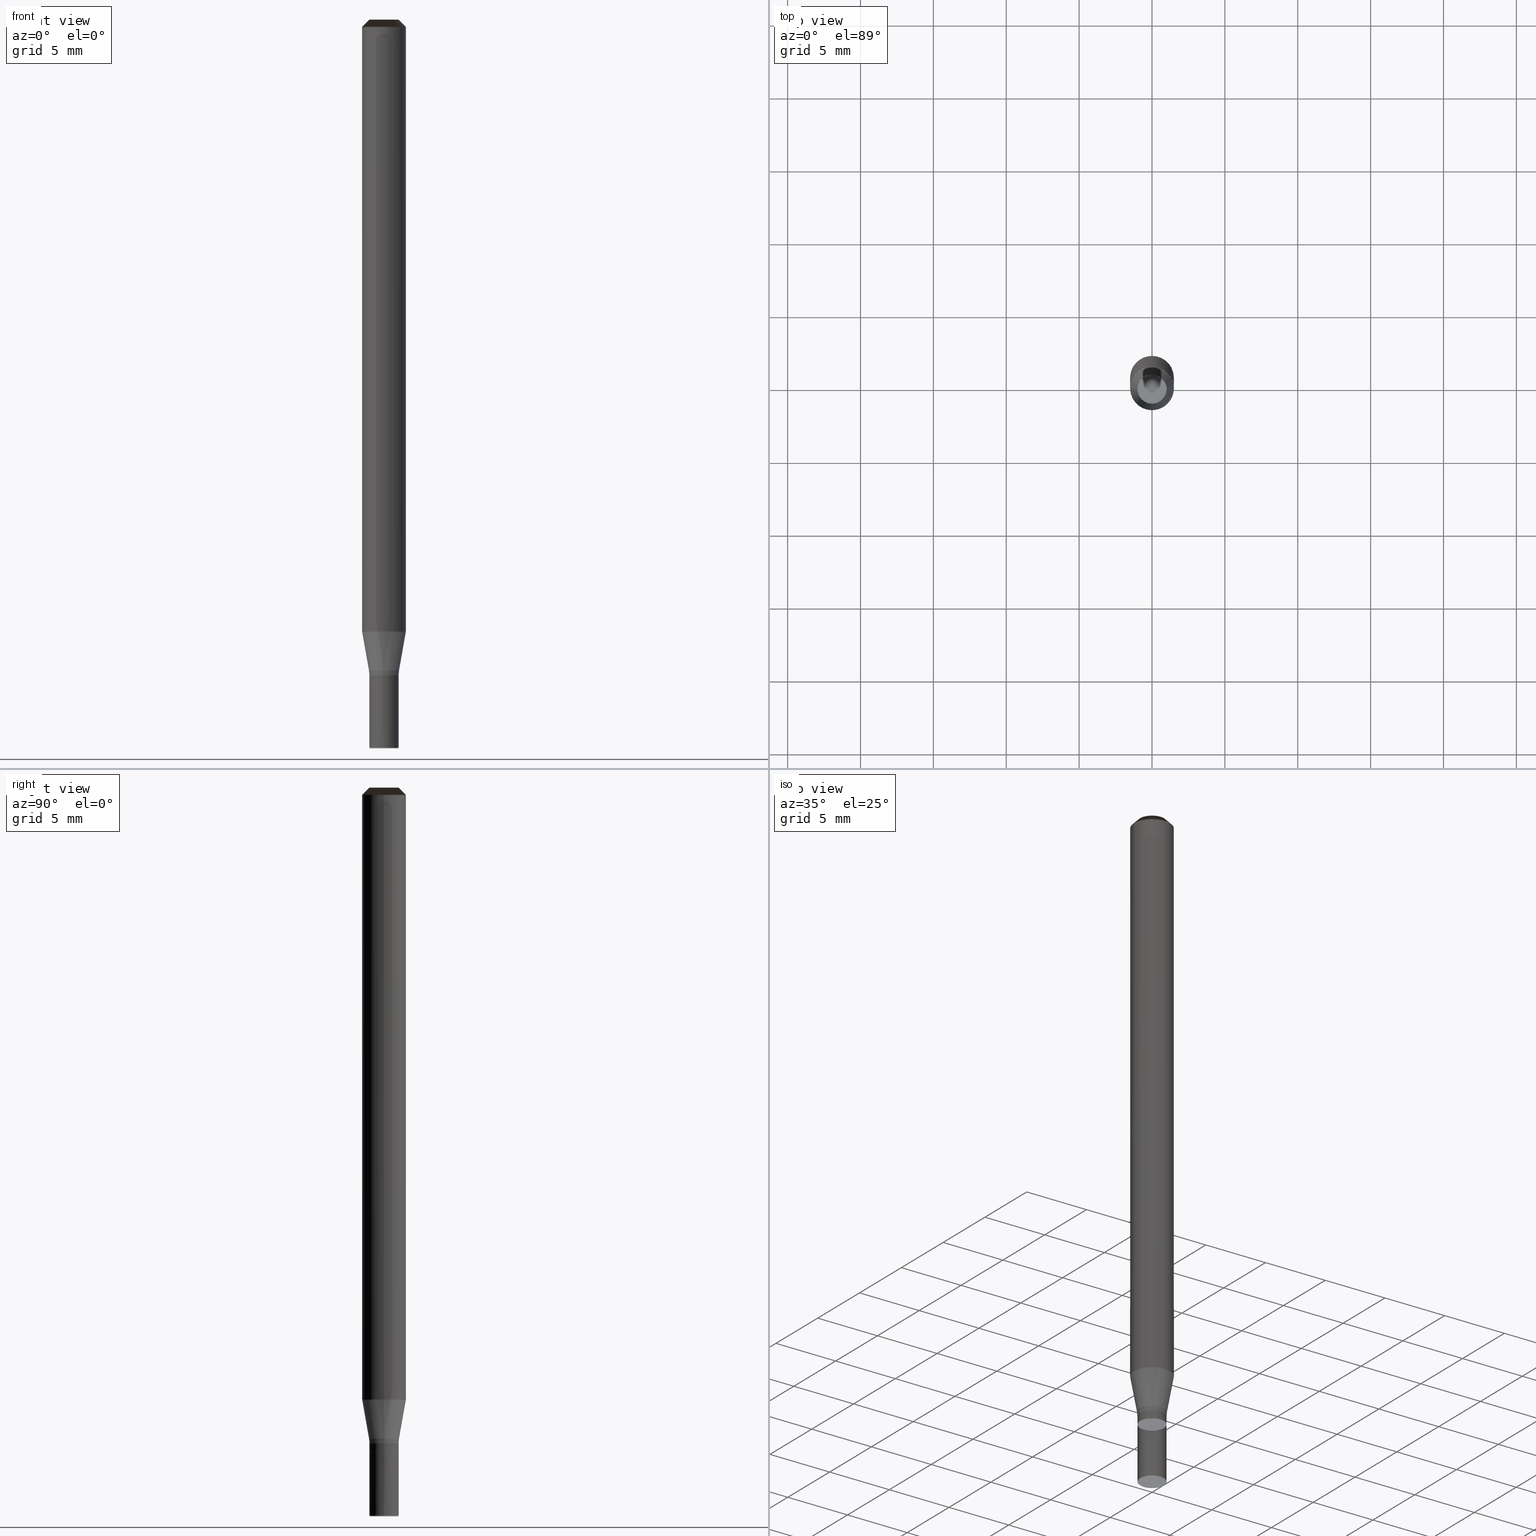
[diagram: canonical four-view strip — front | top / right | iso, engineering-drawing reading convention]
A machine part, canonical four-view strip (front | top / right | iso — engineering-drawing reading convention). The complete STEP part file that produces these views, byte-faithful:
ISO-10303-21;
HEADER;
/* Generated by ISBE GmbH (www.isbe.de) */
/* OPTION: using custom schema-name function */

FILE_DESCRIPTION(
/* description */ (''),
/* implementation_level */ '2;1');

FILE_NAME(
/*name*/ '2540500020',
/*time_stamp*/'2020-3-26T14:10:33',
/*author*/ ('ISBE GmbH'),
/*organization*/ ('ISBE GmbH'),
/*preprocessor_version*/ 'STEP IO v1.0',
/*originating_system*/ '',
/*authorisation*/ '');

FILE_SCHEMA (('AUTOMOTIVE_DESIGN'));
ENDSEC;

DATA;
#10=SHAPE_DEFINITION_REPRESENTATION(#11,#53);
#11=PRODUCT_DEFINITION_SHAPE('Document','',#13);
#12=PRODUCT_DEFINITION_CONTEXT('3D Mechanical Parts',#17,'design');
#13=PRODUCT_DEFINITION('A','First version',#14,#12);
#14=PRODUCT_DEFINITION_FORMATION_WITH_SPECIFIED_SOURCE('A','First version',#19,.MADE.);
#15=PRODUCT_RELATED_PRODUCT_CATEGORY('tool','tool',(#19));
#16=APPLICATION_PROTOCOL_DEFINITION('Draft International Standard', 'automotive_design',1999,#17);
#17=APPLICATION_CONTEXT('data for automotive mechanical design processes');
#18=PRODUCT_CONTEXT('3D Mechanical Parts',#17,'mechanical');
#19=PRODUCT('Document','Document','ISBE converted to STEP',(#18));
#20=(
LENGTH_UNIT()
NAMED_UNIT(*)
SI_UNIT(.MILLI.,.METRE.)
);
#21=(
NAMED_UNIT(*)
PLANE_ANGLE_UNIT()
SI_UNIT($,.RADIAN.)
);
#22=DIMENSIONAL_EXPONENTS(0.,0.,0.,0.,0.,0.,0.);
#23=PLANE_ANGLE_MEASURE_WITH_UNIT(PLANE_ANGLE_MEASURE(0.01745329252),#21);
#24=(
CONVERSION_BASED_UNIT('DEGREES',#23)
NAMED_UNIT(#22)
PLANE_ANGLE_UNIT()
);
#25=(
NAMED_UNIT(*)
SI_UNIT($,.STERADIAN.)
SOLID_ANGLE_UNIT()
);
#26=UNCERTAINTY_MEASURE_WITH_UNIT(LENGTH_MEASURE(0.001),#20, 'DISTANCE_ACCURACY_VALUE', 'Maximum model space distance between geometric entities at asserted connectivities');
#27=(
GEOMETRIC_REPRESENTATION_CONTEXT(3)
GLOBAL_UNCERTAINTY_ASSIGNED_CONTEXT((#26))
GLOBAL_UNIT_ASSIGNED_CONTEXT((#25,#24,#20))
REPRESENTATION_CONTEXT('ID1','3D')
);
#28=CARTESIAN_POINT('',(0.0,0.0,0.0));
#29=DIRECTION('',(1.0,0.0,0.0));
#30=DIRECTION('',(0.0,0.0,1.0));
#31=AXIS2_PLACEMENT_3D('',#28,#30,#29);
#32=CARTESIAN_POINT('',(0.0,0.0,0.0));
#33=DIRECTION('',(1.0,0.0,0.0));
#34=DIRECTION('',(0.0,0.0,1.0));
#35=AXIS2_PLACEMENT_3D('',#32,#34,#33);
#36=CARTESIAN_POINT('',(0.0,0.0,0.0));
#37=DIRECTION('',(1.0,0.0,0.0));
#38=DIRECTION('',(0.0,0.0,1.0));
#39=AXIS2_PLACEMENT_3D('',#36,#38,#37);
#40=CARTESIAN_POINT('',(0.0,0.0,0.0));
#41=DIRECTION('',(0.0,0.0,1.0));
#42=DIRECTION('',(1.0,0.0,0.0));
#43=AXIS2_PLACEMENT_3D('MCS',#40,#42,#41);
#44=CARTESIAN_POINT('',(0.0,0.0,41.989381763139));
#45=DIRECTION('',(0.0,0.0,1.0));
#46=DIRECTION('',(1.0,0.0,0.0));
#47=AXIS2_PLACEMENT_3D('PCS',#44,#46,#45);
#48=CARTESIAN_POINT('',(0.0,0.0,-8.010618236861));
#49=DIRECTION('',(0.0,0.0,1.0));
#50=DIRECTION('',(1.0,0.0,0.0));
#51=AXIS2_PLACEMENT_3D('CIP',#48,#50,#49);
#53=SHAPE_REPRESENTATION('Document',(#31,#35,#39,#43,#47,#51),#27);
#54=DIRECTION('',(1.0,0.0,0.0));
#55=DIRECTION('',(0.0,0.0,1.0));
#56=CARTESIAN_POINT('',(-0.009998760884,0.000157419108,-8.010618236861));
#57=CARTESIAN_POINT('',(-0.010283211718,-0.017909992856,-8.010618236861));
#58=CARTESIAN_POINT('',(-0.010629626507,-0.039913158102,-8.010618236861));
#59=CARTESIAN_POINT('',(-0.01096128709,-0.060979183098,-8.010618236861));
#60=CARTESIAN_POINT('',(-0.011289616439,-0.081833618752,-8.010618236861));
#61=CARTESIAN_POINT('',(-0.011616643925,-0.102605364223,-8.010618236861));
#62=CARTESIAN_POINT('',(-0.011943026584,-0.123336152283,-8.010618236861));
#63=CARTESIAN_POINT('',(-0.012269042539,-0.144043648505,-8.010618236861));
#64=CARTESIAN_POINT('',(-0.012594829947,-0.164736628131,-8.010618236861));
#65=CARTESIAN_POINT('',(-0.012920465262,-0.185419947286,-8.010618236861));
#66=CARTESIAN_POINT('',(-0.01324599424,-0.20609651227,-8.010618236861));
#67=CARTESIAN_POINT('',(-0.013571445948,-0.226768169332,-8.010618236861));
#68=CARTESIAN_POINT('',(-0.013896839741,-0.247436147766,-8.010618236861));
#69=CARTESIAN_POINT('',(-0.014222189004,-0.268101297833,-8.010618236861));
#70=CARTESIAN_POINT('',(-0.014547503292,-0.28876422643,-8.010618236861));
#71=CARTESIAN_POINT('',(-0.01487278961,-0.30942537837,-8.010618236861));
#72=CARTESIAN_POINT('',(-0.015198053205,-0.330085087116,-8.010618236861));
#73=CARTESIAN_POINT('',(-0.015523298093,-0.350743607577,-8.010618236861));
#74=CARTESIAN_POINT('',(-0.015848527393,-0.371401137957,-8.010618236861));
#75=CARTESIAN_POINT('',(-0.016173743568,-0.392057834696,-8.010618236861));
#76=CARTESIAN_POINT('',(-0.016498948588,-0.41271382292,-8.010618236861));
#77=CARTESIAN_POINT('',(-0.016824144048,-0.433369203903,-8.010618236861));
#78=CARTESIAN_POINT('',(-0.017149331252,-0.454024060494,-8.010618236861));
#79=CARTESIAN_POINT('',(-0.017474511278,-0.474678461125,-8.010618236861));
#80=CARTESIAN_POINT('',(-0.017799685022,-0.495332462814,-8.010618236861));
#81=CARTESIAN_POINT('',(-0.01812485324,-0.515986113456,-8.010618236861));
#82=CARTESIAN_POINT('',(-0.018450016569,-0.536639453569,-8.010618236861));
#83=CARTESIAN_POINT('',(-0.018775175552,-0.557292517669,-8.010618236861));
#84=CARTESIAN_POINT('',(-0.019100330656,-0.577945335338,-8.010618236861));
#85=CARTESIAN_POINT('',(-0.019425482281,-0.598597932077,-8.010618236861));
#86=CARTESIAN_POINT('',(-0.019750630776,-0.619250329984,-8.010618236861));
#87=CARTESIAN_POINT('',(-0.020075776443,-0.639902548306,-8.010618236861));
#88=CARTESIAN_POINT('',(-0.020400919549,-0.660554603884,-8.010618236861));
#89=CARTESIAN_POINT('',(-0.020726060325,-0.681206511515,-8.010618236861));
#90=CARTESIAN_POINT('',(-0.021051198977,-0.701858284257,-8.010618236861));
#91=CARTESIAN_POINT('',(-0.021376335688,-0.722509933674,-8.010618236861));
#92=CARTESIAN_POINT('',(-0.021701470619,-0.743161470044,-8.010618236861));
#93=CARTESIAN_POINT('',(-0.022026603914,-0.763812902536,-8.010618236861));
#94=CARTESIAN_POINT('',(-0.022351735704,-0.784464239352,-8.010618236861));
#95=CARTESIAN_POINT('',(-0.022676866102,-0.805115487852,-8.010618236861));
#96=CARTESIAN_POINT('',(-0.023001995215,-0.825766654662,-8.010618236861));
#97=CARTESIAN_POINT('',(-0.023327123136,-0.846417745759,-8.010618236861));
#98=CARTESIAN_POINT('',(-0.02365224995,-0.867068766552,-8.010618236861));
#99=CARTESIAN_POINT('',(-0.023977375734,-0.887719721948,-8.010618236861));
#100=CARTESIAN_POINT('',(-0.024302500558,-0.908370616404,-8.010618236861));
#101=CARTESIAN_POINT('',(-0.024627624488,-0.929021453985,-8.010618236861));
#102=CARTESIAN_POINT('',(-0.02495274758,-0.9496722384,-8.010618236861));
#103=CARTESIAN_POINT('',(-0.018205063804,-0.962327816106,-7.998118236861));
#104=CARTESIAN_POINT('',(-0.011276008127,-0.974934793533,-7.985618236861));
#105=CARTESIAN_POINT('',(-0.004165935408,-0.98749121261,-7.973118236861));
#106=CARTESIAN_POINT('',(0.003124780687,-0.999995117861,-7.960618236861));
#107=CARTESIAN_POINT('',(0.022175526769,-0.999754092771,-7.911118236861));
#108=CARTESIAN_POINT('',(0.041218223379,-0.999150167923,-7.861618236861));
#109=CARTESIAN_POINT('',(0.060245958226,-0.998183562536,-7.812118236861));
#110=CARTESIAN_POINT('',(0.079251824452,-0.996854627476,-7.762618236861));
#111=CARTESIAN_POINT('',(0.098228923135,-0.995163845133,-7.713118236861));
#112=CARTESIAN_POINT('',(0.117170365798,-0.993111829241,-7.663618236861));
#113=CARTESIAN_POINT('',(0.136069276905,-0.99069932466,-7.614118236861));
#114=CARTESIAN_POINT('',(0.154918796359,-0.987927207103,-7.564618236861));
#115=CARTESIAN_POINT('',(0.173712081991,-0.984796482818,-7.515118236861));
#116=CARTESIAN_POINT('',(0.192442312044,-0.981308288223,-7.465618236861));
#117=CARTESIAN_POINT('',(0.211102687651,-0.977463889495,-7.416118236861));
#118=CARTESIAN_POINT('',(0.229686435301,-0.973264682108,-7.366618236861));
#119=CARTESIAN_POINT('',(0.248186809297,-0.968712190329,-7.317118236861));
#120=CARTESIAN_POINT('',(0.266597094206,-0.963808066661,-7.267618236861));
#121=CARTESIAN_POINT('',(0.284910607297,-0.958554091249,-7.218118236861));
#122=CARTESIAN_POINT('',(0.303120700967,-0.952952171227,-7.168618236861));
#123=CARTESIAN_POINT('',(0.32122076515,-0.94700434003,-7.119118236861));
#124=CARTESIAN_POINT('',(0.339204229723,-0.940712756657,-7.069618236861));
#125=CARTESIAN_POINT('',(0.357064566885,-0.934079704883,-7.020118236861));
#126=CARTESIAN_POINT('',(0.37479529353,-0.927107592433,-6.970618236861));
#127=CARTESIAN_POINT('',(0.392389973599,-0.919798950107,-6.921118236861));
#128=CARTESIAN_POINT('',(0.409842220417,-0.912156430863,-6.871618236861));
#129=CARTESIAN_POINT('',(0.427145699008,-0.904182808849,-6.822118236861));
#130=CARTESIAN_POINT('',(0.444294128402,-0.895880978405,-6.772618236861));
#131=CARTESIAN_POINT('',(0.461281283905,-0.887253953003,-6.723118236861));
#132=CARTESIAN_POINT('',(0.478100999367,-0.878304864158,-6.673618236861));
#133=CARTESIAN_POINT('',(0.494747169417,-0.869036960292,-6.624118236861));
#134=CARTESIAN_POINT('',(0.511213751676,-0.859453605552,-6.574618236861));
#135=CARTESIAN_POINT('',(0.527494768958,-0.849558278591,-6.525118236861));
#136=CARTESIAN_POINT('',(0.54358431143,-0.839354571303,-6.475618236861));
#137=CARTESIAN_POINT('',(0.559476538766,-0.828846187522,-6.426118236861));
#138=CARTESIAN_POINT('',(0.575165682262,-0.818036941677,-6.376618236861));
#139=CARTESIAN_POINT('',(0.590646046931,-0.806930757404,-6.327118236861));
#140=CARTESIAN_POINT('',(0.60591201357,-0.795531666127,-6.277618236861));
#141=CARTESIAN_POINT('',(0.620958040802,-0.783843805591,-6.228118236861));
#142=CARTESIAN_POINT('',(0.635778667084,-0.77187141836,-6.178618236861));
#143=CARTESIAN_POINT('',(0.650368512691,-0.75961885028,-6.129118236861));
#144=CARTESIAN_POINT('',(0.664722281669,-0.747090548898,-6.079618236861));
#145=CARTESIAN_POINT('',(0.678834763757,-0.734291061851,-6.030118236861));
#146=CARTESIAN_POINT('',(0.692700836281,-0.721225035211,-5.980618236861));
#147=CARTESIAN_POINT('',(0.706315466007,-0.707897211803,-5.931118236861));
#148=CARTESIAN_POINT('',(0.719673710975,-0.69431242948,-5.881618236861));
#149=CARTESIAN_POINT('',(0.732770722289,-0.68047561937,-5.832118236861));
#150=CARTESIAN_POINT('',(0.745601745876,-0.666391804081,-5.782618236861));
#151=CARTESIAN_POINT('',(0.758162124217,-0.652066095885,-5.733118236861));
#152=CARTESIAN_POINT('',(0.770447298032,-0.637503694856,-5.683618236861));
#153=CARTESIAN_POINT('',(0.782452807937,-0.622709886987,-5.634118236861));
#154=CARTESIAN_POINT('',(0.794174296066,-0.607690042265,-5.584618236861));
#155=CARTESIAN_POINT('',(0.805607507645,-0.592449612732,-5.535118236861));
#156=CARTESIAN_POINT('',(0.816748292545,-0.576994130494,-5.485618236861));
#157=CARTESIAN_POINT('',(0.827592606783,-0.561329205723,-5.436118236861));
#158=CARTESIAN_POINT('',(0.838136513993,-0.545460524614,-5.386618236861));
#159=CARTESIAN_POINT('',(0.848376186851,-0.529393847324,-5.337118236861));
#160=CARTESIAN_POINT('',(0.858307908469,-0.513135005881,-5.287618236861));
#161=CARTESIAN_POINT('',(0.867928073741,-0.496689902065,-5.238118236861));
#162=CARTESIAN_POINT('',(0.877233190652,-0.480064505268,-5.188618236861));
#163=CARTESIAN_POINT('',(0.886219881548,-0.463264850327,-5.139118236861));
#164=CARTESIAN_POINT('',(0.894884884358,-0.446297035333,-5.089618236861));
#165=CARTESIAN_POINT('',(0.903225053782,-0.429167219415,-5.040118236861));
#166=CARTESIAN_POINT('',(0.911237362429,-0.41188162051,-4.990618236861));
#167=CARTESIAN_POINT('',(0.918918901919,-0.394446513098,-4.941118236861));
#168=CARTESIAN_POINT('',(0.926266883939,-0.376868225934,-4.891618236861));
#169=CARTESIAN_POINT('',(0.93327864125,-0.359153139742,-4.842118236861));
#170=CARTESIAN_POINT('',(0.939951628662,-0.341307684904,-4.792618236861));
#171=CARTESIAN_POINT('',(0.946283423955,-0.323338339124,-4.743118236861));
#172=CARTESIAN_POINT('',(0.952271728756,-0.305251625078,-4.693618236861));
#173=CARTESIAN_POINT('',(0.957914369375,-0.287054108043,-4.644118236861));
#174=CARTESIAN_POINT('',(0.963209297597,-0.26875239352,-4.594618236861));
#175=CARTESIAN_POINT('',(0.968154591421,-0.250353124828,-4.545118236861));
#176=CARTESIAN_POINT('',(0.972748455758,-0.231862980701,-4.495618236861));
#177=CARTESIAN_POINT('',(0.976989223088,-0.213288672859,-4.446118236861));
#178=CARTESIAN_POINT('',(0.980875354058,-0.19463694357,-4.396618236861));
#179=CARTESIAN_POINT('',(0.984405438044,-0.175914563207,-4.347118236861));
#180=CARTESIAN_POINT('',(0.987578193667,-0.15712832779,-4.297618236861));
#181=CARTESIAN_POINT('',(0.990392469249,-0.138285056516,-4.248118236861));
#182=CARTESIAN_POINT('',(0.992847243239,-0.119391589284,-4.198618236861));
#183=CARTESIAN_POINT('',(0.994941624583,-0.100454784216,-4.149118236861));
#184=CARTESIAN_POINT('',(0.996674853042,-0.081481515165,-4.099618236861));
#185=CARTESIAN_POINT('',(0.998046299473,-0.062478669219,-4.050118236861));
#186=CARTESIAN_POINT('',(0.999055466057,-0.043453144201,-4.000618236861));
#187=CARTESIAN_POINT('',(0.999701986477,-0.024411846169,-3.951118236861));
#188=CARTESIAN_POINT('',(0.999985626053,-0.005361686906,-3.901618236861));
#189=CARTESIAN_POINT('',(0.999906281828,0.013690418592,-3.852118236861));
#190=CARTESIAN_POINT('',(0.999463982602,0.032737554617,-3.802618236861));
#191=CARTESIAN_POINT('',(0.998658888924,0.05177280727,-3.753118236861));
#192=CARTESIAN_POINT('',(0.997491293036,0.070789266962,-3.703618236861));
#193=CARTESIAN_POINT('',(0.995961618762,0.089780030928,-3.654118236861));
#194=CARTESIAN_POINT('',(0.009998760884,-0.000157419108,-8.010618236861));
#195=CARTESIAN_POINT('',(0.010283211718,0.017909992856,-8.010618236861));
#196=CARTESIAN_POINT('',(0.010629626507,0.039913158102,-8.010618236861));
#197=CARTESIAN_POINT('',(0.01096128709,0.060979183098,-8.010618236861));
#198=CARTESIAN_POINT('',(0.011289616439,0.081833618752,-8.010618236861));
#199=CARTESIAN_POINT('',(0.011616643925,0.102605364223,-8.010618236861));
#200=CARTESIAN_POINT('',(0.011943026584,0.123336152283,-8.010618236861));
#201=CARTESIAN_POINT('',(0.012269042539,0.144043648505,-8.010618236861));
#202=CARTESIAN_POINT('',(0.012594829947,0.164736628131,-8.010618236861));
#203=CARTESIAN_POINT('',(0.012920465262,0.185419947286,-8.010618236861));
#204=CARTESIAN_POINT('',(0.01324599424,0.20609651227,-8.010618236861));
#205=CARTESIAN_POINT('',(0.013571445948,0.226768169332,-8.010618236861));
#206=CARTESIAN_POINT('',(0.013896839741,0.247436147766,-8.010618236861));
#207=CARTESIAN_POINT('',(0.014222189004,0.268101297833,-8.010618236861));
#208=CARTESIAN_POINT('',(0.014547503292,0.28876422643,-8.010618236861));
#209=CARTESIAN_POINT('',(0.01487278961,0.30942537837,-8.010618236861));
#210=CARTESIAN_POINT('',(0.015198053205,0.330085087116,-8.010618236861));
#211=CARTESIAN_POINT('',(0.015523298093,0.350743607577,-8.010618236861));
#212=CARTESIAN_POINT('',(0.015848527393,0.371401137957,-8.010618236861));
#213=CARTESIAN_POINT('',(0.016173743568,0.392057834696,-8.010618236861));
#214=CARTESIAN_POINT('',(0.016498948588,0.41271382292,-8.010618236861));
#215=CARTESIAN_POINT('',(0.016824144048,0.433369203903,-8.010618236861));
#216=CARTESIAN_POINT('',(0.017149331252,0.454024060494,-8.010618236861));
#217=CARTESIAN_POINT('',(0.017474511278,0.474678461125,-8.010618236861));
#218=CARTESIAN_POINT('',(0.017799685022,0.495332462814,-8.010618236861));
#219=CARTESIAN_POINT('',(0.01812485324,0.515986113456,-8.010618236861));
#220=CARTESIAN_POINT('',(0.018450016569,0.536639453569,-8.010618236861));
#221=CARTESIAN_POINT('',(0.018775175552,0.557292517669,-8.010618236861));
#222=CARTESIAN_POINT('',(0.019100330656,0.577945335338,-8.010618236861));
#223=CARTESIAN_POINT('',(0.019425482281,0.598597932077,-8.010618236861));
#224=CARTESIAN_POINT('',(0.019750630776,0.619250329984,-8.010618236861));
#225=CARTESIAN_POINT('',(0.020075776443,0.639902548306,-8.010618236861));
#226=CARTESIAN_POINT('',(0.020400919549,0.660554603884,-8.010618236861));
#227=CARTESIAN_POINT('',(0.020726060325,0.681206511515,-8.010618236861));
#228=CARTESIAN_POINT('',(0.021051198977,0.701858284257,-8.010618236861));
#229=CARTESIAN_POINT('',(0.021376335688,0.722509933674,-8.010618236861));
#230=CARTESIAN_POINT('',(0.021701470619,0.743161470044,-8.010618236861));
#231=CARTESIAN_POINT('',(0.022026603914,0.763812902536,-8.010618236861));
#232=CARTESIAN_POINT('',(0.022351735704,0.784464239352,-8.010618236861));
#233=CARTESIAN_POINT('',(0.022676866102,0.805115487852,-8.010618236861));
#234=CARTESIAN_POINT('',(0.023001995215,0.825766654662,-8.010618236861));
#235=CARTESIAN_POINT('',(0.023327123136,0.846417745759,-8.010618236861));
#236=CARTESIAN_POINT('',(0.02365224995,0.867068766552,-8.010618236861));
#237=CARTESIAN_POINT('',(0.023977375734,0.887719721948,-8.010618236861));
#238=CARTESIAN_POINT('',(0.024302500558,0.908370616404,-8.010618236861));
#239=CARTESIAN_POINT('',(0.024627624488,0.929021453985,-8.010618236861));
#240=CARTESIAN_POINT('',(0.02495274758,0.9496722384,-8.010618236861));
#241=CARTESIAN_POINT('',(0.018205063804,0.962327816106,-7.998118236861));
#242=CARTESIAN_POINT('',(0.011276008127,0.974934793533,-7.985618236861));
#243=CARTESIAN_POINT('',(0.004165935408,0.98749121261,-7.973118236861));
#244=CARTESIAN_POINT('',(-0.003124780687,0.999995117861,-7.960618236861));
#245=CARTESIAN_POINT('',(-0.022175526769,0.999754092771,-7.911118236861));
#246=CARTESIAN_POINT('',(-0.041218223379,0.999150167923,-7.861618236861));
#247=CARTESIAN_POINT('',(-0.060245958226,0.998183562536,-7.812118236861));
#248=CARTESIAN_POINT('',(-0.079251824452,0.996854627476,-7.762618236861));
#249=CARTESIAN_POINT('',(-0.098228923135,0.995163845133,-7.713118236861));
#250=CARTESIAN_POINT('',(-0.117170365798,0.993111829241,-7.663618236861));
#251=CARTESIAN_POINT('',(-0.136069276905,0.99069932466,-7.614118236861));
#252=CARTESIAN_POINT('',(-0.154918796359,0.987927207103,-7.564618236861));
#253=CARTESIAN_POINT('',(-0.173712081991,0.984796482818,-7.515118236861));
#254=CARTESIAN_POINT('',(-0.192442312044,0.981308288223,-7.465618236861));
#255=CARTESIAN_POINT('',(-0.211102687651,0.977463889495,-7.416118236861));
#256=CARTESIAN_POINT('',(-0.229686435301,0.973264682108,-7.366618236861));
#257=CARTESIAN_POINT('',(-0.248186809297,0.968712190329,-7.317118236861));
#258=CARTESIAN_POINT('',(-0.266597094206,0.963808066661,-7.267618236861));
#259=CARTESIAN_POINT('',(-0.284910607297,0.958554091249,-7.218118236861));
#260=CARTESIAN_POINT('',(-0.303120700967,0.952952171227,-7.168618236861));
#261=CARTESIAN_POINT('',(-0.32122076515,0.94700434003,-7.119118236861));
#262=CARTESIAN_POINT('',(-0.339204229723,0.940712756657,-7.069618236861));
#263=CARTESIAN_POINT('',(-0.357064566885,0.934079704883,-7.020118236861));
#264=CARTESIAN_POINT('',(-0.37479529353,0.927107592433,-6.970618236861));
#265=CARTESIAN_POINT('',(-0.392389973599,0.919798950107,-6.921118236861));
#266=CARTESIAN_POINT('',(-0.409842220417,0.912156430863,-6.871618236861));
#267=CARTESIAN_POINT('',(-0.427145699008,0.904182808849,-6.822118236861));
#268=CARTESIAN_POINT('',(-0.444294128402,0.895880978405,-6.772618236861));
#269=CARTESIAN_POINT('',(-0.461281283905,0.887253953003,-6.723118236861));
#270=CARTESIAN_POINT('',(-0.478100999367,0.878304864158,-6.673618236861));
#271=CARTESIAN_POINT('',(-0.494747169417,0.869036960292,-6.624118236861));
#272=CARTESIAN_POINT('',(-0.511213751676,0.859453605552,-6.574618236861));
#273=CARTESIAN_POINT('',(-0.527494768958,0.849558278591,-6.525118236861));
#274=CARTESIAN_POINT('',(-0.54358431143,0.839354571303,-6.475618236861));
#275=CARTESIAN_POINT('',(-0.559476538766,0.828846187522,-6.426118236861));
#276=CARTESIAN_POINT('',(-0.575165682262,0.818036941677,-6.376618236861));
#277=CARTESIAN_POINT('',(-0.590646046931,0.806930757404,-6.327118236861));
#278=CARTESIAN_POINT('',(-0.60591201357,0.795531666127,-6.277618236861));
#279=CARTESIAN_POINT('',(-0.620958040802,0.783843805591,-6.228118236861));
#280=CARTESIAN_POINT('',(-0.635778667084,0.77187141836,-6.178618236861));
#281=CARTESIAN_POINT('',(-0.650368512691,0.75961885028,-6.129118236861));
#282=CARTESIAN_POINT('',(-0.664722281669,0.747090548898,-6.079618236861));
#283=CARTESIAN_POINT('',(-0.678834763757,0.734291061851,-6.030118236861));
#284=CARTESIAN_POINT('',(-0.692700836281,0.721225035211,-5.980618236861));
#285=CARTESIAN_POINT('',(-0.706315466007,0.707897211803,-5.931118236861));
#286=CARTESIAN_POINT('',(-0.719673710975,0.69431242948,-5.881618236861));
#287=CARTESIAN_POINT('',(-0.732770722289,0.68047561937,-5.832118236861));
#288=CARTESIAN_POINT('',(-0.745601745876,0.666391804081,-5.782618236861));
#289=CARTESIAN_POINT('',(-0.758162124217,0.652066095885,-5.733118236861));
#290=CARTESIAN_POINT('',(-0.770447298032,0.637503694856,-5.683618236861));
#291=CARTESIAN_POINT('',(-0.782452807937,0.622709886987,-5.634118236861));
#292=CARTESIAN_POINT('',(-0.794174296066,0.607690042265,-5.584618236861));
#293=CARTESIAN_POINT('',(-0.805607507645,0.592449612732,-5.535118236861));
#294=CARTESIAN_POINT('',(-0.816748292545,0.576994130494,-5.485618236861));
#295=CARTESIAN_POINT('',(-0.827592606783,0.561329205723,-5.436118236861));
#296=CARTESIAN_POINT('',(-0.838136513993,0.545460524614,-5.386618236861));
#297=CARTESIAN_POINT('',(-0.848376186851,0.529393847324,-5.337118236861));
#298=CARTESIAN_POINT('',(-0.858307908469,0.513135005881,-5.287618236861));
#299=CARTESIAN_POINT('',(-0.867928073741,0.496689902065,-5.238118236861));
#300=CARTESIAN_POINT('',(-0.877233190652,0.480064505268,-5.188618236861));
#301=CARTESIAN_POINT('',(-0.886219881548,0.463264850327,-5.139118236861));
#302=CARTESIAN_POINT('',(-0.894884884358,0.446297035333,-5.089618236861));
#303=CARTESIAN_POINT('',(-0.903225053782,0.429167219415,-5.040118236861));
#304=CARTESIAN_POINT('',(-0.911237362429,0.41188162051,-4.990618236861));
#305=CARTESIAN_POINT('',(-0.918918901919,0.394446513098,-4.941118236861));
#306=CARTESIAN_POINT('',(-0.926266883939,0.376868225934,-4.891618236861));
#307=CARTESIAN_POINT('',(-0.93327864125,0.359153139742,-4.842118236861));
#308=CARTESIAN_POINT('',(-0.939951628662,0.341307684904,-4.792618236861));
#309=CARTESIAN_POINT('',(-0.946283423955,0.323338339124,-4.743118236861));
#310=CARTESIAN_POINT('',(-0.952271728756,0.305251625078,-4.693618236861));
#311=CARTESIAN_POINT('',(-0.957914369375,0.287054108043,-4.644118236861));
#312=CARTESIAN_POINT('',(-0.963209297597,0.26875239352,-4.594618236861));
#313=CARTESIAN_POINT('',(-0.968154591421,0.250353124828,-4.545118236861));
#314=CARTESIAN_POINT('',(-0.972748455758,0.231862980701,-4.495618236861));
#315=CARTESIAN_POINT('',(-0.976989223088,0.213288672859,-4.446118236861));
#316=CARTESIAN_POINT('',(-0.980875354058,0.19463694357,-4.396618236861));
#317=CARTESIAN_POINT('',(-0.984405438044,0.175914563207,-4.347118236861));
#318=CARTESIAN_POINT('',(-0.987578193667,0.15712832779,-4.297618236861));
#319=CARTESIAN_POINT('',(-0.990392469249,0.138285056516,-4.248118236861));
#320=CARTESIAN_POINT('',(-0.992847243239,0.119391589284,-4.198618236861));
#321=CARTESIAN_POINT('',(-0.994941624583,0.100454784216,-4.149118236861));
#322=CARTESIAN_POINT('',(-0.996674853042,0.081481515165,-4.099618236861));
#323=CARTESIAN_POINT('',(-0.998046299473,0.062478669219,-4.050118236861));
#324=CARTESIAN_POINT('',(-0.999055466057,0.043453144201,-4.000618236861));
#325=CARTESIAN_POINT('',(-0.999701986477,0.024411846169,-3.951118236861));
#326=CARTESIAN_POINT('',(-0.999985626053,0.005361686906,-3.901618236861));
#327=CARTESIAN_POINT('',(-0.999906281828,-0.013690418591,-3.852118236861));
#328=CARTESIAN_POINT('',(-0.999463982602,-0.032737554617,-3.802618236861));
#329=CARTESIAN_POINT('',(-0.998658888924,-0.05177280727,-3.753118236861));
#330=CARTESIAN_POINT('',(-0.997491293036,-0.070789266962,-3.703618236861));
#331=CARTESIAN_POINT('',(-0.995961618762,-0.089780030928,-3.654118236861));
#332=CARTESIAN_POINT('',(0.0,0.0,-8.010618236861));
#333=CARTESIAN_POINT('',(0.95,0.0,-8.010618236861));
#334=CARTESIAN_POINT('',(0.95,0.95,-8.010618236861));
#335=CARTESIAN_POINT('',(0.0,0.95,-8.010618236861));
#336=CARTESIAN_POINT('',(-0.95,0.95,-8.010618236861));
#337=CARTESIAN_POINT('',(-0.95,0.0,-8.010618236861));
#338=CARTESIAN_POINT('',(1.0,0.0,-7.960618236861));
#339=CARTESIAN_POINT('',(1.0,1.0,-7.960618236861));
#340=CARTESIAN_POINT('',(0.0,1.0,-7.960618236861));
#341=CARTESIAN_POINT('',(-1.0,1.0,-7.960618236861));
#342=CARTESIAN_POINT('',(-1.0,0.0,-7.960618236861));
#343=CARTESIAN_POINT('',(1.0,0.0,-3.635618236861));
#344=CARTESIAN_POINT('',(1.0,1.0,-3.635618236861));
#345=CARTESIAN_POINT('',(0.0,1.0,-3.635618236861));
#346=CARTESIAN_POINT('',(-1.0,1.0,-3.635618236861));
#347=CARTESIAN_POINT('',(-1.0,0.0,-3.635618236861));
#348=CARTESIAN_POINT('',(0.0,0.0,-3.635618236861));
#349=CARTESIAN_POINT('',(-0.95,-0.95,-8.010618236861));
#350=CARTESIAN_POINT('',(0.0,-0.95,-8.010618236861));
#351=CARTESIAN_POINT('',(0.95,-0.95,-8.010618236861));
#352=CARTESIAN_POINT('',(-1.0,-1.0,-7.960618236861));
#353=CARTESIAN_POINT('',(0.0,-1.0,-7.960618236861));
#354=CARTESIAN_POINT('',(1.0,-1.0,-7.960618236861));
#355=CARTESIAN_POINT('',(-1.0,-1.0,-3.635618236861));
#356=CARTESIAN_POINT('',(0.0,-1.0,-3.635618236861));
#357=CARTESIAN_POINT('',(1.0,-1.0,-3.635618236861));
#358=CARTESIAN_POINT('',(1.0,0.0,-3.010618236861));
#359=CARTESIAN_POINT('',(1.0,1.0,-3.010618236861));
#360=CARTESIAN_POINT('',(0.0,1.0,-3.010618236861));
#361=CARTESIAN_POINT('',(-1.0,1.0,-3.010618236861));
#362=CARTESIAN_POINT('',(-1.0,0.0,-3.010618236861));
#363=CARTESIAN_POINT('',(1.0,0.0,-2.835640909809));
#364=CARTESIAN_POINT('',(1.0,1.0,-2.835640909809));
#365=CARTESIAN_POINT('',(0.0,1.0,-2.835640909809));
#366=CARTESIAN_POINT('',(-1.0,1.0,-2.835640909809));
#367=CARTESIAN_POINT('',(-1.0,0.0,-2.835640909809));
#368=CARTESIAN_POINT('',(1.030384493976,0.0,-2.663321881527));
#369=CARTESIAN_POINT('',(1.030384493976,1.030384493976,-2.663321881527));
#370=CARTESIAN_POINT('',(0.0,1.030384493976,-2.663321881527));
#371=CARTESIAN_POINT('',(-1.030384493976,1.030384493976,-2.663321881527));
#372=CARTESIAN_POINT('',(-1.030384493976,0.0,-2.663321881527));
#373=CARTESIAN_POINT('',(1.5,0.0,0.0));
#374=CARTESIAN_POINT('',(1.5,1.5,0.0));
#375=CARTESIAN_POINT('',(0.0,1.5,0.0));
#376=CARTESIAN_POINT('',(-1.5,1.5,0.0));
#377=CARTESIAN_POINT('',(-1.5,0.0,0.0));
#378=CARTESIAN_POINT('',(1.5,0.0,41.489381763139));
#379=CARTESIAN_POINT('',(1.5,1.5,41.489381763139));
#380=CARTESIAN_POINT('',(0.0,1.5,41.489381763139));
#381=CARTESIAN_POINT('',(-1.5,1.5,41.489381763139));
#382=CARTESIAN_POINT('',(-1.5,0.0,41.489381763139));
#383=CARTESIAN_POINT('',(1.0,0.0,41.989381763139));
#384=CARTESIAN_POINT('',(1.0,1.0,41.989381763139));
#385=CARTESIAN_POINT('',(0.0,1.0,41.989381763139));
#386=CARTESIAN_POINT('',(-1.0,1.0,41.989381763139));
#387=CARTESIAN_POINT('',(-1.0,0.0,41.989381763139));
#388=CARTESIAN_POINT('',(0.0,0.0,41.989381763139));
#389=CARTESIAN_POINT('',(-1.0,-1.0,-3.010618236861));
#390=CARTESIAN_POINT('',(0.0,-1.0,-3.010618236861));
#391=CARTESIAN_POINT('',(1.0,-1.0,-3.010618236861));
#392=CARTESIAN_POINT('',(-1.0,-1.0,-2.835640909809));
#393=CARTESIAN_POINT('',(0.0,-1.0,-2.835640909809));
#394=CARTESIAN_POINT('',(1.0,-1.0,-2.835640909809));
#395=CARTESIAN_POINT('',(-1.030384493976,-1.030384493976,-2.663321881527));
#396=CARTESIAN_POINT('',(0.0,-1.030384493976,-2.663321881527));
#397=CARTESIAN_POINT('',(1.030384493976,-1.030384493976,-2.663321881527));
#398=CARTESIAN_POINT('',(-1.5,-1.5,0.0));
#399=CARTESIAN_POINT('',(0.0,-1.5,0.0));
#400=CARTESIAN_POINT('',(1.5,-1.5,0.0));
#401=CARTESIAN_POINT('',(-1.5,-1.5,41.489381763139));
#402=CARTESIAN_POINT('',(0.0,-1.5,41.489381763139));
#403=CARTESIAN_POINT('',(1.5,-1.5,41.489381763139));
#404=CARTESIAN_POINT('',(-1.0,-1.0,41.989381763139));
#405=CARTESIAN_POINT('',(0.0,-1.0,41.989381763139));
#406=CARTESIAN_POINT('',(1.0,-1.0,41.989381763139));
#407=(
BOUNDED_CURVE()
B_SPLINE_CURVE(1,(#56,#57,#58,#59,#60,#61,#62,#63,#64,#65,#66,#67,#68,#69,#70,#71,#72,#73,#74,#75,#76,#77,#78,#79,#80,#81,#82,#83,#84,#85,#86,#87,#88,#89,#90,#91,#92,#93,#94,#95,#96,#97,#98,#99,#100,#101,#102,#103,#104,#105,#106,#107,#108,#109,#110,#111,#112,#113,#114,#115,#116,#117,#118,#119,#120,#121,#122,#123,#124,#125,#126,#127,#128,#129,#130,#131,#132,#133,#134,#135,#136,#137,#138,#139,#140,#141,#142,#143,#144,#145,#146,#147,#148,#149,#150,#151,#152,#153,#154,#155,#156,#157,#158,#159,#160,#161,#162,#163,#164,#165,#166,#167,#168,#169,#170,#171,#172,#173,#174,#175,#176,#177,#178,#179,#180,#181,#182,#183,#184,#185,#186,#187,#188,#189,#190,#191,#192,#193),.UNSPECIFIED.,.F.,.F.)
B_SPLINE_CURVE_WITH_KNOTS((2,1,1,1,1,1,1,1,1,1,1,1,1,1,1,1,1,1,1,1,1,1,1,1,1,1,1,1,1,1,1,1,1,1,1,1,1,1,1,1,1,1,1,1,1,1,1,1,1,1,1,1,1,1,1,1,1,1,1,1,1,1,1,1,1,1,1,1,1,1,1,1,1,1,1,1,1,1,1,1,1,1,1,1,1,1,1,1,1,1,1,1,1,1,1,1,1,1,1,1,1,1,1,1,1,1,1,1,1,1,1,1,1,1,1,1,1,1,1,1,1,1,1,1,1,1,1,1,1,1,1,1,1,1,1,1,1,2),
(0.0,0.003203427889,0.007104681337,0.010839775889,0.014537354763,0.018220272321,0.021895927959,0.025567453856,0.0292364059,0.032903645102,0.036569686761,0.040234858224,0.043899377452,0.047563395198,0.051227019068,0.05489032793,0.058553380907,0.062216223197,0.065878889941,0.069541408876,0.07320380219,0.076866087836,0.080528280506,0.084190392332,0.087852433424,0.091514412274,0.095176336066,0.09883821092,0.10250004208,0.106161834069,0.109823590804,0.113485315698,0.117147011736,0.120808681543,0.124470327433,0.128131951458,0.131793555439,0.135455141001,0.1391167096,0.14277826254,0.146439800997,0.150101326029,0.153762838595,0.157424339567,0.161085829734,0.164747309816,0.168408780472,0.171781548004,0.175160147616,0.178544644908,0.181935105134,0.191338149902,0.200741194671,0.210144239439,0.219547284208,0.228950328976,0.238353373745,0.247756418514,0.257159463282,0.266562508051,0.275965552819,0.285368597588,0.294771642357,0.304174687125,0.313577731894,0.322980776662,0.332383821431,0.341786866199,0.351189910968,0.360592955737,0.369996000505,0.379399045274,0.388802090042,0.398205134811,0.407608179579,0.417011224348,0.426414269117,0.435817313885,0.445220358654,0.454623403422,0.464026448191,0.47342949296,0.482832537728,0.492235582497,0.501638627265,0.511041672034,0.520444716802,0.529847761571,0.53925080634,0.548653851108,0.558056895877,0.567459940645,0.576862985414,0.586266030182,0.595669074951,0.60507211972,0.614475164488,0.623878209257,0.633281254025,0.642684298794,0.652087343563,0.661490388331,0.6708934331,0.680296477868,0.689699522637,0.699102567405,0.708505612174,0.717908656943,0.727311701711,0.73671474648,0.746117791248,0.755520836017,0.764923880786,0.774326925554,0.783729970323,0.793133015091,0.80253605986,0.811939104628,0.821342149397,0.830745194166,0.840148238934,0.849551283703,0.858954328471,0.86835737324,0.877760418008,0.887163462777,0.896566507546,0.905969552314,0.915372597083,0.924775641851,0.93417868662,0.943581731389,0.952984776157,0.962387820926,0.971790865694,0.981193910463,0.990596955231,1.0),.UNSPECIFIED.)
CURVE()
GEOMETRIC_REPRESENTATION_ITEM()
RATIONAL_B_SPLINE_CURVE((1.0,1.0,1.0,1.0,1.0,1.0,1.0,1.0,1.0,1.0,1.0,1.0,1.0,1.0,1.0,1.0,1.0,1.0,1.0,1.0,1.0,1.0,1.0,1.0,1.0,1.0,1.0,1.0,1.0,1.0,1.0,1.0,1.0,1.0,1.0,1.0,1.0,1.0,1.0,1.0,1.0,1.0,1.0,1.0,1.0,1.0,1.0,1.0,1.0,1.0,1.0,1.0,1.0,1.0,1.0,1.0,1.0,1.0,1.0,1.0,1.0,1.0,1.0,1.0,1.0,1.0,1.0,1.0,1.0,1.0,1.0,1.0,1.0,1.0,1.0,1.0,1.0,1.0,1.0,1.0,1.0,1.0,1.0,1.0,1.0,1.0,1.0,1.0,1.0,1.0,1.0,1.0,1.0,1.0,1.0,1.0,1.0,1.0,1.0,1.0,1.0,1.0,1.0,1.0,1.0,1.0,1.0,1.0,1.0,1.0,1.0,1.0,1.0,1.0,1.0,1.0,1.0,1.0,1.0,1.0,1.0,1.0,1.0,1.0,1.0,1.0,1.0,1.0,1.0,1.0,1.0,1.0,1.0,1.0,1.0,1.0,1.0,1.0))
REPRESENTATION_ITEM('')
);
#408=(
BOUNDED_CURVE()
B_SPLINE_CURVE(1,(#194,#195,#196,#197,#198,#199,#200,#201,#202,#203,#204,#205,#206,#207,#208,#209,#210,#211,#212,#213,#214,#215,#216,#217,#218,#219,#220,#221,#222,#223,#224,#225,#226,#227,#228,#229,#230,#231,#232,#233,#234,#235,#236,#237,#238,#239,#240,#241,#242,#243,#244,#245,#246,#247,#248,#249,#250,#251,#252,#253,#254,#255,#256,#257,#258,#259,#260,#261,#262,#263,#264,#265,#266,#267,#268,#269,#270,#271,#272,#273,#274,#275,#276,#277,#278,#279,#280,#281,#282,#283,#284,#285,#286,#287,#288,#289,#290,#291,#292,#293,#294,#295,#296,#297,#298,#299,#300,#301,#302,#303,#304,#305,#306,#307,#308,#309,#310,#311,#312,#313,#314,#315,#316,#317,#318,#319,#320,#321,#322,#323,#324,#325,#326,#327,#328,#329,#330,#331),.UNSPECIFIED.,.F.,.F.)
B_SPLINE_CURVE_WITH_KNOTS((2,1,1,1,1,1,1,1,1,1,1,1,1,1,1,1,1,1,1,1,1,1,1,1,1,1,1,1,1,1,1,1,1,1,1,1,1,1,1,1,1,1,1,1,1,1,1,1,1,1,1,1,1,1,1,1,1,1,1,1,1,1,1,1,1,1,1,1,1,1,1,1,1,1,1,1,1,1,1,1,1,1,1,1,1,1,1,1,1,1,1,1,1,1,1,1,1,1,1,1,1,1,1,1,1,1,1,1,1,1,1,1,1,1,1,1,1,1,1,1,1,1,1,1,1,1,1,1,1,1,1,1,1,1,1,1,1,2),
(0.0,0.003203427889,0.007104681337,0.010839775889,0.014537354763,0.018220272321,0.021895927959,0.025567453856,0.0292364059,0.032903645102,0.036569686761,0.040234858224,0.043899377452,0.047563395198,0.051227019068,0.05489032793,0.058553380907,0.062216223197,0.065878889941,0.069541408876,0.07320380219,0.076866087836,0.080528280506,0.084190392332,0.087852433424,0.091514412274,0.095176336066,0.09883821092,0.10250004208,0.106161834069,0.109823590804,0.113485315698,0.117147011736,0.120808681543,0.124470327433,0.128131951458,0.131793555439,0.135455141001,0.1391167096,0.14277826254,0.146439800997,0.150101326029,0.153762838595,0.157424339567,0.161085829734,0.164747309816,0.168408780472,0.171781548004,0.175160147616,0.178544644908,0.181935105134,0.191338149902,0.200741194671,0.210144239439,0.219547284208,0.228950328976,0.238353373745,0.247756418514,0.257159463282,0.266562508051,0.275965552819,0.285368597588,0.294771642357,0.304174687125,0.313577731894,0.322980776662,0.332383821431,0.341786866199,0.351189910968,0.360592955737,0.369996000505,0.379399045274,0.388802090042,0.398205134811,0.407608179579,0.417011224348,0.426414269117,0.435817313885,0.445220358654,0.454623403422,0.464026448191,0.47342949296,0.482832537728,0.492235582497,0.501638627265,0.511041672034,0.520444716802,0.529847761571,0.53925080634,0.548653851108,0.558056895877,0.567459940645,0.576862985414,0.586266030182,0.595669074951,0.60507211972,0.614475164488,0.623878209257,0.633281254025,0.642684298794,0.652087343563,0.661490388331,0.6708934331,0.680296477868,0.689699522637,0.699102567405,0.708505612174,0.717908656943,0.727311701711,0.73671474648,0.746117791248,0.755520836017,0.764923880786,0.774326925554,0.783729970323,0.793133015091,0.80253605986,0.811939104628,0.821342149397,0.830745194166,0.840148238934,0.849551283703,0.858954328471,0.86835737324,0.877760418008,0.887163462777,0.896566507546,0.905969552314,0.915372597083,0.924775641851,0.93417868662,0.943581731389,0.952984776157,0.962387820926,0.971790865694,0.981193910463,0.990596955231,1.0),.UNSPECIFIED.)
CURVE()
GEOMETRIC_REPRESENTATION_ITEM()
RATIONAL_B_SPLINE_CURVE((1.0,1.0,1.0,1.0,1.0,1.0,1.0,1.0,1.0,1.0,1.0,1.0,1.0,1.0,1.0,1.0,1.0,1.0,1.0,1.0,1.0,1.0,1.0,1.0,1.0,1.0,1.0,1.0,1.0,1.0,1.0,1.0,1.0,1.0,1.0,1.0,1.0,1.0,1.0,1.0,1.0,1.0,1.0,1.0,1.0,1.0,1.0,1.0,1.0,1.0,1.0,1.0,1.0,1.0,1.0,1.0,1.0,1.0,1.0,1.0,1.0,1.0,1.0,1.0,1.0,1.0,1.0,1.0,1.0,1.0,1.0,1.0,1.0,1.0,1.0,1.0,1.0,1.0,1.0,1.0,1.0,1.0,1.0,1.0,1.0,1.0,1.0,1.0,1.0,1.0,1.0,1.0,1.0,1.0,1.0,1.0,1.0,1.0,1.0,1.0,1.0,1.0,1.0,1.0,1.0,1.0,1.0,1.0,1.0,1.0,1.0,1.0,1.0,1.0,1.0,1.0,1.0,1.0,1.0,1.0,1.0,1.0,1.0,1.0,1.0,1.0,1.0,1.0,1.0,1.0,1.0,1.0,1.0,1.0,1.0,1.0,1.0,1.0))
REPRESENTATION_ITEM('')
);
#409=SHAPE_REPRESENTATION_RELATIONSHIP('','',#53,#410);
#410=GEOMETRICALLY_BOUNDED_WIREFRAME_SHAPE_REPRESENTATION('Curves',(#411,#31),#27);
#411=GEOMETRIC_CURVE_SET('CurveSet',(#407,#408));
#412=(
BOUNDED_SURFACE()
B_SPLINE_SURFACE(1,2,(
(#332,#332,#332,#332,#332),
(#333,#334,#335,#336,#337)
), .UNSPECIFIED.,.F.,.F.,.F.)
B_SPLINE_SURFACE_WITH_KNOTS((2,2),(3,2,3),(
0.0,1.0),(
0.0,0.5,1.0), .UNSPECIFIED.)
GEOMETRIC_REPRESENTATION_ITEM()
RATIONAL_B_SPLINE_SURFACE(((1.0,0.707106781187,1.0,0.707106781187,1.0),
(1.0,0.707106781187,1.0,0.707106781187,1.0)
))
REPRESENTATION_ITEM('')
SURFACE()
);
#413=(
BOUNDED_CURVE()
B_SPLINE_CURVE(1,(#337,#332),.UNSPECIFIED.,.F.,.F.)
B_SPLINE_CURVE_WITH_KNOTS((2,2),
(0.0,1.0),.UNSPECIFIED.)
CURVE()
GEOMETRIC_REPRESENTATION_ITEM()
RATIONAL_B_SPLINE_CURVE((1.0,1.0))
REPRESENTATION_ITEM('')
);
#414=(
BOUNDED_CURVE()
B_SPLINE_CURVE(1,(#332,#333),.UNSPECIFIED.,.F.,.F.)
B_SPLINE_CURVE_WITH_KNOTS((2,2),
(0.0,1.0),.UNSPECIFIED.)
CURVE()
GEOMETRIC_REPRESENTATION_ITEM()
RATIONAL_B_SPLINE_CURVE((1.0,1.0))
REPRESENTATION_ITEM('')
);
#415=(
BOUNDED_CURVE()
B_SPLINE_CURVE(2,(#333,#334,#335,#336,#337),.UNSPECIFIED.,.F.,.F.)
B_SPLINE_CURVE_WITH_KNOTS((3,2,3),
(0.0,0.5,1.0),.UNSPECIFIED.)
CURVE()
GEOMETRIC_REPRESENTATION_ITEM()
RATIONAL_B_SPLINE_CURVE((1.0,0.707106781187,1.0,0.707106781187,1.0))
REPRESENTATION_ITEM('')
);
#416=VERTEX_POINT('',#332);
#417=VERTEX_POINT('',#333);
#418=VERTEX_POINT('',#337);
#419=EDGE_CURVE('',#418,#416,#413,.T.);
#420=EDGE_CURVE('',#416,#417,#414,.T.);
#421=EDGE_CURVE('',#417,#418,#415,.T.);
#422=ORIENTED_EDGE('',*,*,#419,.T.);
#423=ORIENTED_EDGE('',*,*,#420,.T.);
#424=ORIENTED_EDGE('',*,*,#421,.T.);
#425=EDGE_LOOP('',(#422,#423,#424));
#426=FACE_OUTER_BOUND('',#425,.T.);
#427=ADVANCED_FACE('',(#426),#412,.T.);
#428=(
BOUNDED_SURFACE()
B_SPLINE_SURFACE(1,2,(
(#333,#334,#335,#336,#337),
(#338,#339,#340,#341,#342)
), .UNSPECIFIED.,.F.,.F.,.F.)
B_SPLINE_SURFACE_WITH_KNOTS((2,2),(3,2,3),(
0.0,1.0),(
0.0,0.5,1.0), .UNSPECIFIED.)
GEOMETRIC_REPRESENTATION_ITEM()
RATIONAL_B_SPLINE_SURFACE(((1.0,0.707106781187,1.0,0.707106781187,1.0),
(1.0,0.707106781187,1.0,0.707106781187,1.0)
))
REPRESENTATION_ITEM('')
SURFACE()
);
#429=(
BOUNDED_CURVE()
B_SPLINE_CURVE(2,(#337,#336,#335,#334,#333),.UNSPECIFIED.,.F.,.F.)
B_SPLINE_CURVE_WITH_KNOTS((3,2,3),
(0.0,0.5,1.0),.UNSPECIFIED.)
CURVE()
GEOMETRIC_REPRESENTATION_ITEM()
RATIONAL_B_SPLINE_CURVE((1.0,0.707106781187,1.0,0.707106781187,1.0))
REPRESENTATION_ITEM('')
);
#430=(
BOUNDED_CURVE()
B_SPLINE_CURVE(1,(#333,#338),.UNSPECIFIED.,.F.,.F.)
B_SPLINE_CURVE_WITH_KNOTS((2,2),
(0.0,1.0),.UNSPECIFIED.)
CURVE()
GEOMETRIC_REPRESENTATION_ITEM()
RATIONAL_B_SPLINE_CURVE((1.0,1.0))
REPRESENTATION_ITEM('')
);
#431=(
BOUNDED_CURVE()
B_SPLINE_CURVE(2,(#338,#339,#340,#341,#342),.UNSPECIFIED.,.F.,.F.)
B_SPLINE_CURVE_WITH_KNOTS((3,2,3),
(0.0,0.5,1.0),.UNSPECIFIED.)
CURVE()
GEOMETRIC_REPRESENTATION_ITEM()
RATIONAL_B_SPLINE_CURVE((1.0,0.707106781187,1.0,0.707106781187,1.0))
REPRESENTATION_ITEM('')
);
#432=(
BOUNDED_CURVE()
B_SPLINE_CURVE(1,(#342,#337),.UNSPECIFIED.,.F.,.F.)
B_SPLINE_CURVE_WITH_KNOTS((2,2),
(0.0,1.0),.UNSPECIFIED.)
CURVE()
GEOMETRIC_REPRESENTATION_ITEM()
RATIONAL_B_SPLINE_CURVE((1.0,1.0))
REPRESENTATION_ITEM('')
);
#433=VERTEX_POINT('',#333);
#434=VERTEX_POINT('',#337);
#435=VERTEX_POINT('',#338);
#436=VERTEX_POINT('',#342);
#437=EDGE_CURVE('',#434,#433,#429,.T.);
#438=EDGE_CURVE('',#433,#435,#430,.T.);
#439=EDGE_CURVE('',#435,#436,#431,.T.);
#440=EDGE_CURVE('',#436,#434,#432,.T.);
#441=ORIENTED_EDGE('',*,*,#437,.T.);
#442=ORIENTED_EDGE('',*,*,#438,.T.);
#443=ORIENTED_EDGE('',*,*,#439,.T.);
#444=ORIENTED_EDGE('',*,*,#440,.T.);
#445=EDGE_LOOP('',(#441,#442,#443,#444));
#446=FACE_OUTER_BOUND('',#445,.T.);
#447=ADVANCED_FACE('',(#446),#428,.T.);
#448=(
BOUNDED_SURFACE()
B_SPLINE_SURFACE(1,2,(
(#338,#339,#340,#341,#342),
(#343,#344,#345,#346,#347)
), .UNSPECIFIED.,.F.,.F.,.F.)
B_SPLINE_SURFACE_WITH_KNOTS((2,2),(3,2,3),(
0.0,1.0),(
0.0,0.5,1.0), .UNSPECIFIED.)
GEOMETRIC_REPRESENTATION_ITEM()
RATIONAL_B_SPLINE_SURFACE(((1.0,0.707106781187,1.0,0.707106781187,1.0),
(1.0,0.707106781187,1.0,0.707106781187,1.0)
))
REPRESENTATION_ITEM('')
SURFACE()
);
#449=(
BOUNDED_CURVE()
B_SPLINE_CURVE(2,(#342,#341,#340,#339,#338),.UNSPECIFIED.,.F.,.F.)
B_SPLINE_CURVE_WITH_KNOTS((3,2,3),
(0.0,0.5,1.0),.UNSPECIFIED.)
CURVE()
GEOMETRIC_REPRESENTATION_ITEM()
RATIONAL_B_SPLINE_CURVE((1.0,0.707106781187,1.0,0.707106781187,1.0))
REPRESENTATION_ITEM('')
);
#450=(
BOUNDED_CURVE()
B_SPLINE_CURVE(1,(#338,#343),.UNSPECIFIED.,.F.,.F.)
B_SPLINE_CURVE_WITH_KNOTS((2,2),
(0.0,1.0),.UNSPECIFIED.)
CURVE()
GEOMETRIC_REPRESENTATION_ITEM()
RATIONAL_B_SPLINE_CURVE((1.0,1.0))
REPRESENTATION_ITEM('')
);
#451=(
BOUNDED_CURVE()
B_SPLINE_CURVE(2,(#343,#344,#345,#346,#347),.UNSPECIFIED.,.F.,.F.)
B_SPLINE_CURVE_WITH_KNOTS((3,2,3),
(0.0,0.5,1.0),.UNSPECIFIED.)
CURVE()
GEOMETRIC_REPRESENTATION_ITEM()
RATIONAL_B_SPLINE_CURVE((1.0,0.707106781187,1.0,0.707106781187,1.0))
REPRESENTATION_ITEM('')
);
#452=(
BOUNDED_CURVE()
B_SPLINE_CURVE(1,(#347,#342),.UNSPECIFIED.,.F.,.F.)
B_SPLINE_CURVE_WITH_KNOTS((2,2),
(0.0,1.0),.UNSPECIFIED.)
CURVE()
GEOMETRIC_REPRESENTATION_ITEM()
RATIONAL_B_SPLINE_CURVE((1.0,1.0))
REPRESENTATION_ITEM('')
);
#453=VERTEX_POINT('',#338);
#454=VERTEX_POINT('',#342);
#455=VERTEX_POINT('',#343);
#456=VERTEX_POINT('',#347);
#457=EDGE_CURVE('',#454,#453,#449,.T.);
#458=EDGE_CURVE('',#453,#455,#450,.T.);
#459=EDGE_CURVE('',#455,#456,#451,.T.);
#460=EDGE_CURVE('',#456,#454,#452,.T.);
#461=ORIENTED_EDGE('',*,*,#457,.T.);
#462=ORIENTED_EDGE('',*,*,#458,.T.);
#463=ORIENTED_EDGE('',*,*,#459,.T.);
#464=ORIENTED_EDGE('',*,*,#460,.T.);
#465=EDGE_LOOP('',(#461,#462,#463,#464));
#466=FACE_OUTER_BOUND('',#465,.T.);
#467=ADVANCED_FACE('',(#466),#448,.T.);
#468=(
BOUNDED_SURFACE()
B_SPLINE_SURFACE(1,2,(
(#343,#344,#345,#346,#347),
(#348,#348,#348,#348,#348)
), .UNSPECIFIED.,.F.,.F.,.F.)
B_SPLINE_SURFACE_WITH_KNOTS((2,2),(3,2,3),(
0.0,1.0),(
0.0,0.5,1.0), .UNSPECIFIED.)
GEOMETRIC_REPRESENTATION_ITEM()
RATIONAL_B_SPLINE_SURFACE(((1.0,0.707106781187,1.0,0.707106781187,1.0),
(1.0,0.707106781187,1.0,0.707106781187,1.0)
))
REPRESENTATION_ITEM('')
SURFACE()
);
#469=(
BOUNDED_CURVE()
B_SPLINE_CURVE(2,(#347,#346,#345,#344,#343),.UNSPECIFIED.,.F.,.F.)
B_SPLINE_CURVE_WITH_KNOTS((3,2,3),
(0.0,0.5,1.0),.UNSPECIFIED.)
CURVE()
GEOMETRIC_REPRESENTATION_ITEM()
RATIONAL_B_SPLINE_CURVE((1.0,0.707106781187,1.0,0.707106781187,1.0))
REPRESENTATION_ITEM('')
);
#470=(
BOUNDED_CURVE()
B_SPLINE_CURVE(1,(#343,#348),.UNSPECIFIED.,.F.,.F.)
B_SPLINE_CURVE_WITH_KNOTS((2,2),
(0.0,1.0),.UNSPECIFIED.)
CURVE()
GEOMETRIC_REPRESENTATION_ITEM()
RATIONAL_B_SPLINE_CURVE((1.0,1.0))
REPRESENTATION_ITEM('')
);
#471=(
BOUNDED_CURVE()
B_SPLINE_CURVE(1,(#348,#347),.UNSPECIFIED.,.F.,.F.)
B_SPLINE_CURVE_WITH_KNOTS((2,2),
(0.0,1.0),.UNSPECIFIED.)
CURVE()
GEOMETRIC_REPRESENTATION_ITEM()
RATIONAL_B_SPLINE_CURVE((1.0,1.0))
REPRESENTATION_ITEM('')
);
#472=VERTEX_POINT('',#343);
#473=VERTEX_POINT('',#347);
#474=VERTEX_POINT('',#348);
#475=EDGE_CURVE('',#473,#472,#469,.T.);
#476=EDGE_CURVE('',#472,#474,#470,.T.);
#477=EDGE_CURVE('',#474,#473,#471,.T.);
#478=ORIENTED_EDGE('',*,*,#475,.T.);
#479=ORIENTED_EDGE('',*,*,#476,.T.);
#480=ORIENTED_EDGE('',*,*,#477,.T.);
#481=EDGE_LOOP('',(#478,#479,#480));
#482=FACE_OUTER_BOUND('',#481,.T.);
#483=ADVANCED_FACE('',(#482),#468,.T.);
#484=(
BOUNDED_SURFACE()
B_SPLINE_SURFACE(1,2,(
(#332,#332,#332,#332,#332),
(#337,#349,#350,#351,#333)
), .UNSPECIFIED.,.F.,.F.,.F.)
B_SPLINE_SURFACE_WITH_KNOTS((2,2),(3,2,3),(
0.0,1.0),(
0.0,0.5,1.0), .UNSPECIFIED.)
GEOMETRIC_REPRESENTATION_ITEM()
RATIONAL_B_SPLINE_SURFACE(((1.0,0.707106781187,1.0,0.707106781187,1.0),
(1.0,0.707106781187,1.0,0.707106781187,1.0)
))
REPRESENTATION_ITEM('')
SURFACE()
);
#485=(
BOUNDED_CURVE()
B_SPLINE_CURVE(1,(#333,#332),.UNSPECIFIED.,.F.,.F.)
B_SPLINE_CURVE_WITH_KNOTS((2,2),
(0.0,1.0),.UNSPECIFIED.)
CURVE()
GEOMETRIC_REPRESENTATION_ITEM()
RATIONAL_B_SPLINE_CURVE((1.0,1.0))
REPRESENTATION_ITEM('')
);
#486=(
BOUNDED_CURVE()
B_SPLINE_CURVE(1,(#332,#337),.UNSPECIFIED.,.F.,.F.)
B_SPLINE_CURVE_WITH_KNOTS((2,2),
(0.0,1.0),.UNSPECIFIED.)
CURVE()
GEOMETRIC_REPRESENTATION_ITEM()
RATIONAL_B_SPLINE_CURVE((1.0,1.0))
REPRESENTATION_ITEM('')
);
#487=(
BOUNDED_CURVE()
B_SPLINE_CURVE(2,(#337,#349,#350,#351,#333),.UNSPECIFIED.,.F.,.F.)
B_SPLINE_CURVE_WITH_KNOTS((3,2,3),
(0.0,0.5,1.0),.UNSPECIFIED.)
CURVE()
GEOMETRIC_REPRESENTATION_ITEM()
RATIONAL_B_SPLINE_CURVE((1.0,0.707106781187,1.0,0.707106781187,1.0))
REPRESENTATION_ITEM('')
);
#488=VERTEX_POINT('',#332);
#489=VERTEX_POINT('',#333);
#490=VERTEX_POINT('',#337);
#491=EDGE_CURVE('',#489,#488,#485,.T.);
#492=EDGE_CURVE('',#488,#490,#486,.T.);
#493=EDGE_CURVE('',#490,#489,#487,.T.);
#494=ORIENTED_EDGE('',*,*,#491,.T.);
#495=ORIENTED_EDGE('',*,*,#492,.T.);
#496=ORIENTED_EDGE('',*,*,#493,.T.);
#497=EDGE_LOOP('',(#494,#495,#496));
#498=FACE_OUTER_BOUND('',#497,.T.);
#499=ADVANCED_FACE('',(#498),#484,.T.);
#500=(
BOUNDED_SURFACE()
B_SPLINE_SURFACE(1,2,(
(#337,#349,#350,#351,#333),
(#342,#352,#353,#354,#338)
), .UNSPECIFIED.,.F.,.F.,.F.)
B_SPLINE_SURFACE_WITH_KNOTS((2,2),(3,2,3),(
0.0,1.0),(
0.0,0.5,1.0), .UNSPECIFIED.)
GEOMETRIC_REPRESENTATION_ITEM()
RATIONAL_B_SPLINE_SURFACE(((1.0,0.707106781187,1.0,0.707106781187,1.0),
(1.0,0.707106781187,1.0,0.707106781187,1.0)
))
REPRESENTATION_ITEM('')
SURFACE()
);
#501=(
BOUNDED_CURVE()
B_SPLINE_CURVE(2,(#333,#351,#350,#349,#337),.UNSPECIFIED.,.F.,.F.)
B_SPLINE_CURVE_WITH_KNOTS((3,2,3),
(0.0,0.5,1.0),.UNSPECIFIED.)
CURVE()
GEOMETRIC_REPRESENTATION_ITEM()
RATIONAL_B_SPLINE_CURVE((1.0,0.707106781187,1.0,0.707106781187,1.0))
REPRESENTATION_ITEM('')
);
#502=(
BOUNDED_CURVE()
B_SPLINE_CURVE(1,(#337,#342),.UNSPECIFIED.,.F.,.F.)
B_SPLINE_CURVE_WITH_KNOTS((2,2),
(0.0,1.0),.UNSPECIFIED.)
CURVE()
GEOMETRIC_REPRESENTATION_ITEM()
RATIONAL_B_SPLINE_CURVE((1.0,1.0))
REPRESENTATION_ITEM('')
);
#503=(
BOUNDED_CURVE()
B_SPLINE_CURVE(2,(#342,#352,#353,#354,#338),.UNSPECIFIED.,.F.,.F.)
B_SPLINE_CURVE_WITH_KNOTS((3,2,3),
(0.0,0.5,1.0),.UNSPECIFIED.)
CURVE()
GEOMETRIC_REPRESENTATION_ITEM()
RATIONAL_B_SPLINE_CURVE((1.0,0.707106781187,1.0,0.707106781187,1.0))
REPRESENTATION_ITEM('')
);
#504=(
BOUNDED_CURVE()
B_SPLINE_CURVE(1,(#338,#333),.UNSPECIFIED.,.F.,.F.)
B_SPLINE_CURVE_WITH_KNOTS((2,2),
(0.0,1.0),.UNSPECIFIED.)
CURVE()
GEOMETRIC_REPRESENTATION_ITEM()
RATIONAL_B_SPLINE_CURVE((1.0,1.0))
REPRESENTATION_ITEM('')
);
#505=VERTEX_POINT('',#333);
#506=VERTEX_POINT('',#337);
#507=VERTEX_POINT('',#338);
#508=VERTEX_POINT('',#342);
#509=EDGE_CURVE('',#505,#506,#501,.T.);
#510=EDGE_CURVE('',#506,#508,#502,.T.);
#511=EDGE_CURVE('',#508,#507,#503,.T.);
#512=EDGE_CURVE('',#507,#505,#504,.T.);
#513=ORIENTED_EDGE('',*,*,#509,.T.);
#514=ORIENTED_EDGE('',*,*,#510,.T.);
#515=ORIENTED_EDGE('',*,*,#511,.T.);
#516=ORIENTED_EDGE('',*,*,#512,.T.);
#517=EDGE_LOOP('',(#513,#514,#515,#516));
#518=FACE_OUTER_BOUND('',#517,.T.);
#519=ADVANCED_FACE('',(#518),#500,.T.);
#520=(
BOUNDED_SURFACE()
B_SPLINE_SURFACE(1,2,(
(#342,#352,#353,#354,#338),
(#347,#355,#356,#357,#343)
), .UNSPECIFIED.,.F.,.F.,.F.)
B_SPLINE_SURFACE_WITH_KNOTS((2,2),(3,2,3),(
0.0,1.0),(
0.0,0.5,1.0), .UNSPECIFIED.)
GEOMETRIC_REPRESENTATION_ITEM()
RATIONAL_B_SPLINE_SURFACE(((1.0,0.707106781187,1.0,0.707106781187,1.0),
(1.0,0.707106781187,1.0,0.707106781187,1.0)
))
REPRESENTATION_ITEM('')
SURFACE()
);
#521=(
BOUNDED_CURVE()
B_SPLINE_CURVE(2,(#338,#354,#353,#352,#342),.UNSPECIFIED.,.F.,.F.)
B_SPLINE_CURVE_WITH_KNOTS((3,2,3),
(0.0,0.5,1.0),.UNSPECIFIED.)
CURVE()
GEOMETRIC_REPRESENTATION_ITEM()
RATIONAL_B_SPLINE_CURVE((1.0,0.707106781187,1.0,0.707106781187,1.0))
REPRESENTATION_ITEM('')
);
#522=(
BOUNDED_CURVE()
B_SPLINE_CURVE(1,(#342,#347),.UNSPECIFIED.,.F.,.F.)
B_SPLINE_CURVE_WITH_KNOTS((2,2),
(0.0,1.0),.UNSPECIFIED.)
CURVE()
GEOMETRIC_REPRESENTATION_ITEM()
RATIONAL_B_SPLINE_CURVE((1.0,1.0))
REPRESENTATION_ITEM('')
);
#523=(
BOUNDED_CURVE()
B_SPLINE_CURVE(2,(#347,#355,#356,#357,#343),.UNSPECIFIED.,.F.,.F.)
B_SPLINE_CURVE_WITH_KNOTS((3,2,3),
(0.0,0.5,1.0),.UNSPECIFIED.)
CURVE()
GEOMETRIC_REPRESENTATION_ITEM()
RATIONAL_B_SPLINE_CURVE((1.0,0.707106781187,1.0,0.707106781187,1.0))
REPRESENTATION_ITEM('')
);
#524=(
BOUNDED_CURVE()
B_SPLINE_CURVE(1,(#343,#338),.UNSPECIFIED.,.F.,.F.)
B_SPLINE_CURVE_WITH_KNOTS((2,2),
(0.0,1.0),.UNSPECIFIED.)
CURVE()
GEOMETRIC_REPRESENTATION_ITEM()
RATIONAL_B_SPLINE_CURVE((1.0,1.0))
REPRESENTATION_ITEM('')
);
#525=VERTEX_POINT('',#338);
#526=VERTEX_POINT('',#342);
#527=VERTEX_POINT('',#343);
#528=VERTEX_POINT('',#347);
#529=EDGE_CURVE('',#525,#526,#521,.T.);
#530=EDGE_CURVE('',#526,#528,#522,.T.);
#531=EDGE_CURVE('',#528,#527,#523,.T.);
#532=EDGE_CURVE('',#527,#525,#524,.T.);
#533=ORIENTED_EDGE('',*,*,#529,.T.);
#534=ORIENTED_EDGE('',*,*,#530,.T.);
#535=ORIENTED_EDGE('',*,*,#531,.T.);
#536=ORIENTED_EDGE('',*,*,#532,.T.);
#537=EDGE_LOOP('',(#533,#534,#535,#536));
#538=FACE_OUTER_BOUND('',#537,.T.);
#539=ADVANCED_FACE('',(#538),#520,.T.);
#540=(
BOUNDED_SURFACE()
B_SPLINE_SURFACE(1,2,(
(#347,#355,#356,#357,#343),
(#348,#348,#348,#348,#348)
), .UNSPECIFIED.,.F.,.F.,.F.)
B_SPLINE_SURFACE_WITH_KNOTS((2,2),(3,2,3),(
0.0,1.0),(
0.0,0.5,1.0), .UNSPECIFIED.)
GEOMETRIC_REPRESENTATION_ITEM()
RATIONAL_B_SPLINE_SURFACE(((1.0,0.707106781187,1.0,0.707106781187,1.0),
(1.0,0.707106781187,1.0,0.707106781187,1.0)
))
REPRESENTATION_ITEM('')
SURFACE()
);
#541=(
BOUNDED_CURVE()
B_SPLINE_CURVE(2,(#343,#357,#356,#355,#347),.UNSPECIFIED.,.F.,.F.)
B_SPLINE_CURVE_WITH_KNOTS((3,2,3),
(0.0,0.5,1.0),.UNSPECIFIED.)
CURVE()
GEOMETRIC_REPRESENTATION_ITEM()
RATIONAL_B_SPLINE_CURVE((1.0,0.707106781187,1.0,0.707106781187,1.0))
REPRESENTATION_ITEM('')
);
#542=(
BOUNDED_CURVE()
B_SPLINE_CURVE(1,(#347,#348),.UNSPECIFIED.,.F.,.F.)
B_SPLINE_CURVE_WITH_KNOTS((2,2),
(0.0,1.0),.UNSPECIFIED.)
CURVE()
GEOMETRIC_REPRESENTATION_ITEM()
RATIONAL_B_SPLINE_CURVE((1.0,1.0))
REPRESENTATION_ITEM('')
);
#543=(
BOUNDED_CURVE()
B_SPLINE_CURVE(1,(#348,#343),.UNSPECIFIED.,.F.,.F.)
B_SPLINE_CURVE_WITH_KNOTS((2,2),
(0.0,1.0),.UNSPECIFIED.)
CURVE()
GEOMETRIC_REPRESENTATION_ITEM()
RATIONAL_B_SPLINE_CURVE((1.0,1.0))
REPRESENTATION_ITEM('')
);
#544=VERTEX_POINT('',#343);
#545=VERTEX_POINT('',#347);
#546=VERTEX_POINT('',#348);
#547=EDGE_CURVE('',#544,#545,#541,.T.);
#548=EDGE_CURVE('',#545,#546,#542,.T.);
#549=EDGE_CURVE('',#546,#544,#543,.T.);
#550=ORIENTED_EDGE('',*,*,#547,.T.);
#551=ORIENTED_EDGE('',*,*,#548,.T.);
#552=ORIENTED_EDGE('',*,*,#549,.T.);
#553=EDGE_LOOP('',(#550,#551,#552));
#554=FACE_OUTER_BOUND('',#553,.T.);
#555=ADVANCED_FACE('',(#554),#540,.T.);
#556=CLOSED_SHELL('',(#427,#447,#467,#483,#499,#519,#539,#555));
#557=SHAPE_REPRESENTATION_RELATIONSHIP('','',#53,#558);
#558=ADVANCED_BREP_SHAPE_REPRESENTATION('Solid0',(#559,#31),#27);
#559=MANIFOLD_SOLID_BREP('brep',#556);
#560=(
BOUNDED_SURFACE()
B_SPLINE_SURFACE(1,2,(
(#348,#348,#348,#348,#348),
(#343,#344,#345,#346,#347)
), .UNSPECIFIED.,.F.,.F.,.F.)
B_SPLINE_SURFACE_WITH_KNOTS((2,2),(3,2,3),(
0.0,1.0),(
0.0,0.5,1.0), .UNSPECIFIED.)
GEOMETRIC_REPRESENTATION_ITEM()
RATIONAL_B_SPLINE_SURFACE(((1.0,0.707106781187,1.0,0.707106781187,1.0),
(1.0,0.707106781187,1.0,0.707106781187,1.0)
))
REPRESENTATION_ITEM('')
SURFACE()
);
#561=(
BOUNDED_CURVE()
B_SPLINE_CURVE(1,(#347,#348),.UNSPECIFIED.,.F.,.F.)
B_SPLINE_CURVE_WITH_KNOTS((2,2),
(0.0,1.0),.UNSPECIFIED.)
CURVE()
GEOMETRIC_REPRESENTATION_ITEM()
RATIONAL_B_SPLINE_CURVE((1.0,1.0))
REPRESENTATION_ITEM('')
);
#562=(
BOUNDED_CURVE()
B_SPLINE_CURVE(1,(#348,#343),.UNSPECIFIED.,.F.,.F.)
B_SPLINE_CURVE_WITH_KNOTS((2,2),
(0.0,1.0),.UNSPECIFIED.)
CURVE()
GEOMETRIC_REPRESENTATION_ITEM()
RATIONAL_B_SPLINE_CURVE((1.0,1.0))
REPRESENTATION_ITEM('')
);
#563=(
BOUNDED_CURVE()
B_SPLINE_CURVE(2,(#343,#344,#345,#346,#347),.UNSPECIFIED.,.F.,.F.)
B_SPLINE_CURVE_WITH_KNOTS((3,2,3),
(0.0,0.5,1.0),.UNSPECIFIED.)
CURVE()
GEOMETRIC_REPRESENTATION_ITEM()
RATIONAL_B_SPLINE_CURVE((1.0,0.707106781187,1.0,0.707106781187,1.0))
REPRESENTATION_ITEM('')
);
#564=VERTEX_POINT('',#343);
#565=VERTEX_POINT('',#347);
#566=VERTEX_POINT('',#348);
#567=EDGE_CURVE('',#565,#566,#561,.T.);
#568=EDGE_CURVE('',#566,#564,#562,.T.);
#569=EDGE_CURVE('',#564,#565,#563,.T.);
#570=ORIENTED_EDGE('',*,*,#567,.T.);
#571=ORIENTED_EDGE('',*,*,#568,.T.);
#572=ORIENTED_EDGE('',*,*,#569,.T.);
#573=EDGE_LOOP('',(#570,#571,#572));
#574=FACE_OUTER_BOUND('',#573,.T.);
#575=ADVANCED_FACE('',(#574),#560,.T.);
#576=(
BOUNDED_SURFACE()
B_SPLINE_SURFACE(1,2,(
(#343,#344,#345,#346,#347),
(#358,#359,#360,#361,#362)
), .UNSPECIFIED.,.F.,.F.,.F.)
B_SPLINE_SURFACE_WITH_KNOTS((2,2),(3,2,3),(
0.0,1.0),(
0.0,0.5,1.0), .UNSPECIFIED.)
GEOMETRIC_REPRESENTATION_ITEM()
RATIONAL_B_SPLINE_SURFACE(((1.0,0.707106781187,1.0,0.707106781187,1.0),
(1.0,0.707106781187,1.0,0.707106781187,1.0)
))
REPRESENTATION_ITEM('')
SURFACE()
);
#577=(
BOUNDED_CURVE()
B_SPLINE_CURVE(2,(#347,#346,#345,#344,#343),.UNSPECIFIED.,.F.,.F.)
B_SPLINE_CURVE_WITH_KNOTS((3,2,3),
(0.0,0.5,1.0),.UNSPECIFIED.)
CURVE()
GEOMETRIC_REPRESENTATION_ITEM()
RATIONAL_B_SPLINE_CURVE((1.0,0.707106781187,1.0,0.707106781187,1.0))
REPRESENTATION_ITEM('')
);
#578=(
BOUNDED_CURVE()
B_SPLINE_CURVE(1,(#343,#358),.UNSPECIFIED.,.F.,.F.)
B_SPLINE_CURVE_WITH_KNOTS((2,2),
(0.0,1.0),.UNSPECIFIED.)
CURVE()
GEOMETRIC_REPRESENTATION_ITEM()
RATIONAL_B_SPLINE_CURVE((1.0,1.0))
REPRESENTATION_ITEM('')
);
#579=(
BOUNDED_CURVE()
B_SPLINE_CURVE(2,(#358,#359,#360,#361,#362),.UNSPECIFIED.,.F.,.F.)
B_SPLINE_CURVE_WITH_KNOTS((3,2,3),
(0.0,0.5,1.0),.UNSPECIFIED.)
CURVE()
GEOMETRIC_REPRESENTATION_ITEM()
RATIONAL_B_SPLINE_CURVE((1.0,0.707106781187,1.0,0.707106781187,1.0))
REPRESENTATION_ITEM('')
);
#580=(
BOUNDED_CURVE()
B_SPLINE_CURVE(1,(#362,#347),.UNSPECIFIED.,.F.,.F.)
B_SPLINE_CURVE_WITH_KNOTS((2,2),
(0.0,1.0),.UNSPECIFIED.)
CURVE()
GEOMETRIC_REPRESENTATION_ITEM()
RATIONAL_B_SPLINE_CURVE((1.0,1.0))
REPRESENTATION_ITEM('')
);
#581=VERTEX_POINT('',#343);
#582=VERTEX_POINT('',#347);
#583=VERTEX_POINT('',#358);
#584=VERTEX_POINT('',#362);
#585=EDGE_CURVE('',#582,#581,#577,.T.);
#586=EDGE_CURVE('',#581,#583,#578,.T.);
#587=EDGE_CURVE('',#583,#584,#579,.T.);
#588=EDGE_CURVE('',#584,#582,#580,.T.);
#589=ORIENTED_EDGE('',*,*,#585,.T.);
#590=ORIENTED_EDGE('',*,*,#586,.T.);
#591=ORIENTED_EDGE('',*,*,#587,.T.);
#592=ORIENTED_EDGE('',*,*,#588,.T.);
#593=EDGE_LOOP('',(#589,#590,#591,#592));
#594=FACE_OUTER_BOUND('',#593,.T.);
#595=ADVANCED_FACE('',(#594),#576,.T.);
#596=(
BOUNDED_SURFACE()
B_SPLINE_SURFACE(2,2,(
(#358,#359,#360,#361,#362),
(#363,#364,#365,#366,#367),
(#368,#369,#370,#371,#372)
), .UNSPECIFIED.,.F.,.F.,.F.)
B_SPLINE_SURFACE_WITH_KNOTS((3,3),(3,2,3),(
0.0,1.0),(
0.0,0.5,1.0), .UNSPECIFIED.)
GEOMETRIC_REPRESENTATION_ITEM()
RATIONAL_B_SPLINE_SURFACE(((1.0,0.707106781187,1.0,0.707106781187,1.0),
(0.996194698092,0.704416026403,0.996194698092,0.704416026403,0.996194698092),
(1.0,0.707106781187,1.0,0.707106781187,1.0)
))
REPRESENTATION_ITEM('')
SURFACE()
);
#597=(
BOUNDED_CURVE()
B_SPLINE_CURVE(2,(#362,#361,#360,#359,#358),.UNSPECIFIED.,.F.,.F.)
B_SPLINE_CURVE_WITH_KNOTS((3,2,3),
(0.0,0.5,1.0),.UNSPECIFIED.)
CURVE()
GEOMETRIC_REPRESENTATION_ITEM()
RATIONAL_B_SPLINE_CURVE((1.0,0.707106781187,1.0,0.707106781187,1.0))
REPRESENTATION_ITEM('')
);
#598=(
BOUNDED_CURVE()
B_SPLINE_CURVE(2,(#358,#363,#368),.UNSPECIFIED.,.F.,.F.)
B_SPLINE_CURVE_WITH_KNOTS((3,3),
(0.0,1.0),.UNSPECIFIED.)
CURVE()
GEOMETRIC_REPRESENTATION_ITEM()
RATIONAL_B_SPLINE_CURVE((1.0,0.996194698092,1.0))
REPRESENTATION_ITEM('')
);
#599=(
BOUNDED_CURVE()
B_SPLINE_CURVE(2,(#368,#369,#370,#371,#372),.UNSPECIFIED.,.F.,.F.)
B_SPLINE_CURVE_WITH_KNOTS((3,2,3),
(0.0,0.5,1.0),.UNSPECIFIED.)
CURVE()
GEOMETRIC_REPRESENTATION_ITEM()
RATIONAL_B_SPLINE_CURVE((1.0,0.707106781187,1.0,0.707106781187,1.0))
REPRESENTATION_ITEM('')
);
#600=(
BOUNDED_CURVE()
B_SPLINE_CURVE(2,(#372,#367,#362),.UNSPECIFIED.,.F.,.F.)
B_SPLINE_CURVE_WITH_KNOTS((3,3),
(0.0,1.0),.UNSPECIFIED.)
CURVE()
GEOMETRIC_REPRESENTATION_ITEM()
RATIONAL_B_SPLINE_CURVE((1.0,0.996194698092,1.0))
REPRESENTATION_ITEM('')
);
#601=VERTEX_POINT('',#358);
#602=VERTEX_POINT('',#362);
#603=VERTEX_POINT('',#368);
#604=VERTEX_POINT('',#372);
#605=EDGE_CURVE('',#602,#601,#597,.T.);
#606=EDGE_CURVE('',#601,#603,#598,.T.);
#607=EDGE_CURVE('',#603,#604,#599,.T.);
#608=EDGE_CURVE('',#604,#602,#600,.T.);
#609=ORIENTED_EDGE('',*,*,#605,.T.);
#610=ORIENTED_EDGE('',*,*,#606,.T.);
#611=ORIENTED_EDGE('',*,*,#607,.T.);
#612=ORIENTED_EDGE('',*,*,#608,.T.);
#613=EDGE_LOOP('',(#609,#610,#611,#612));
#614=FACE_OUTER_BOUND('',#613,.T.);
#615=ADVANCED_FACE('',(#614),#596,.T.);
#616=(
BOUNDED_SURFACE()
B_SPLINE_SURFACE(1,2,(
(#368,#369,#370,#371,#372),
(#373,#374,#375,#376,#377)
), .UNSPECIFIED.,.F.,.F.,.F.)
B_SPLINE_SURFACE_WITH_KNOTS((2,2),(3,2,3),(
0.0,1.0),(
0.0,0.5,1.0), .UNSPECIFIED.)
GEOMETRIC_REPRESENTATION_ITEM()
RATIONAL_B_SPLINE_SURFACE(((1.0,0.707106781187,1.0,0.707106781187,1.0),
(1.0,0.707106781187,1.0,0.707106781187,1.0)
))
REPRESENTATION_ITEM('')
SURFACE()
);
#617=(
BOUNDED_CURVE()
B_SPLINE_CURVE(2,(#372,#371,#370,#369,#368),.UNSPECIFIED.,.F.,.F.)
B_SPLINE_CURVE_WITH_KNOTS((3,2,3),
(0.0,0.5,1.0),.UNSPECIFIED.)
CURVE()
GEOMETRIC_REPRESENTATION_ITEM()
RATIONAL_B_SPLINE_CURVE((1.0,0.707106781187,1.0,0.707106781187,1.0))
REPRESENTATION_ITEM('')
);
#618=(
BOUNDED_CURVE()
B_SPLINE_CURVE(1,(#368,#373),.UNSPECIFIED.,.F.,.F.)
B_SPLINE_CURVE_WITH_KNOTS((2,2),
(0.0,1.0),.UNSPECIFIED.)
CURVE()
GEOMETRIC_REPRESENTATION_ITEM()
RATIONAL_B_SPLINE_CURVE((1.0,1.0))
REPRESENTATION_ITEM('')
);
#619=(
BOUNDED_CURVE()
B_SPLINE_CURVE(2,(#373,#374,#375,#376,#377),.UNSPECIFIED.,.F.,.F.)
B_SPLINE_CURVE_WITH_KNOTS((3,2,3),
(0.0,0.5,1.0),.UNSPECIFIED.)
CURVE()
GEOMETRIC_REPRESENTATION_ITEM()
RATIONAL_B_SPLINE_CURVE((1.0,0.707106781187,1.0,0.707106781187,1.0))
REPRESENTATION_ITEM('')
);
#620=(
BOUNDED_CURVE()
B_SPLINE_CURVE(1,(#377,#372),.UNSPECIFIED.,.F.,.F.)
B_SPLINE_CURVE_WITH_KNOTS((2,2),
(0.0,1.0),.UNSPECIFIED.)
CURVE()
GEOMETRIC_REPRESENTATION_ITEM()
RATIONAL_B_SPLINE_CURVE((1.0,1.0))
REPRESENTATION_ITEM('')
);
#621=VERTEX_POINT('',#368);
#622=VERTEX_POINT('',#372);
#623=VERTEX_POINT('',#373);
#624=VERTEX_POINT('',#377);
#625=EDGE_CURVE('',#622,#621,#617,.T.);
#626=EDGE_CURVE('',#621,#623,#618,.T.);
#627=EDGE_CURVE('',#623,#624,#619,.T.);
#628=EDGE_CURVE('',#624,#622,#620,.T.);
#629=ORIENTED_EDGE('',*,*,#625,.T.);
#630=ORIENTED_EDGE('',*,*,#626,.T.);
#631=ORIENTED_EDGE('',*,*,#627,.T.);
#632=ORIENTED_EDGE('',*,*,#628,.T.);
#633=EDGE_LOOP('',(#629,#630,#631,#632));
#634=FACE_OUTER_BOUND('',#633,.T.);
#635=ADVANCED_FACE('',(#634),#616,.T.);
#636=(
BOUNDED_SURFACE()
B_SPLINE_SURFACE(1,2,(
(#373,#374,#375,#376,#377),
(#378,#379,#380,#381,#382)
), .UNSPECIFIED.,.F.,.F.,.F.)
B_SPLINE_SURFACE_WITH_KNOTS((2,2),(3,2,3),(
0.0,1.0),(
0.0,0.5,1.0), .UNSPECIFIED.)
GEOMETRIC_REPRESENTATION_ITEM()
RATIONAL_B_SPLINE_SURFACE(((1.0,0.707106781187,1.0,0.707106781187,1.0),
(1.0,0.707106781187,1.0,0.707106781187,1.0)
))
REPRESENTATION_ITEM('')
SURFACE()
);
#637=(
BOUNDED_CURVE()
B_SPLINE_CURVE(2,(#377,#376,#375,#374,#373),.UNSPECIFIED.,.F.,.F.)
B_SPLINE_CURVE_WITH_KNOTS((3,2,3),
(0.0,0.5,1.0),.UNSPECIFIED.)
CURVE()
GEOMETRIC_REPRESENTATION_ITEM()
RATIONAL_B_SPLINE_CURVE((1.0,0.707106781187,1.0,0.707106781187,1.0))
REPRESENTATION_ITEM('')
);
#638=(
BOUNDED_CURVE()
B_SPLINE_CURVE(1,(#373,#378),.UNSPECIFIED.,.F.,.F.)
B_SPLINE_CURVE_WITH_KNOTS((2,2),
(0.0,1.0),.UNSPECIFIED.)
CURVE()
GEOMETRIC_REPRESENTATION_ITEM()
RATIONAL_B_SPLINE_CURVE((1.0,1.0))
REPRESENTATION_ITEM('')
);
#639=(
BOUNDED_CURVE()
B_SPLINE_CURVE(2,(#378,#379,#380,#381,#382),.UNSPECIFIED.,.F.,.F.)
B_SPLINE_CURVE_WITH_KNOTS((3,2,3),
(0.0,0.5,1.0),.UNSPECIFIED.)
CURVE()
GEOMETRIC_REPRESENTATION_ITEM()
RATIONAL_B_SPLINE_CURVE((1.0,0.707106781187,1.0,0.707106781187,1.0))
REPRESENTATION_ITEM('')
);
#640=(
BOUNDED_CURVE()
B_SPLINE_CURVE(1,(#382,#377),.UNSPECIFIED.,.F.,.F.)
B_SPLINE_CURVE_WITH_KNOTS((2,2),
(0.0,1.0),.UNSPECIFIED.)
CURVE()
GEOMETRIC_REPRESENTATION_ITEM()
RATIONAL_B_SPLINE_CURVE((1.0,1.0))
REPRESENTATION_ITEM('')
);
#641=VERTEX_POINT('',#373);
#642=VERTEX_POINT('',#377);
#643=VERTEX_POINT('',#378);
#644=VERTEX_POINT('',#382);
#645=EDGE_CURVE('',#642,#641,#637,.T.);
#646=EDGE_CURVE('',#641,#643,#638,.T.);
#647=EDGE_CURVE('',#643,#644,#639,.T.);
#648=EDGE_CURVE('',#644,#642,#640,.T.);
#649=ORIENTED_EDGE('',*,*,#645,.T.);
#650=ORIENTED_EDGE('',*,*,#646,.T.);
#651=ORIENTED_EDGE('',*,*,#647,.T.);
#652=ORIENTED_EDGE('',*,*,#648,.T.);
#653=EDGE_LOOP('',(#649,#650,#651,#652));
#654=FACE_OUTER_BOUND('',#653,.T.);
#655=ADVANCED_FACE('',(#654),#636,.T.);
#656=(
BOUNDED_SURFACE()
B_SPLINE_SURFACE(1,2,(
(#378,#379,#380,#381,#382),
(#383,#384,#385,#386,#387)
), .UNSPECIFIED.,.F.,.F.,.F.)
B_SPLINE_SURFACE_WITH_KNOTS((2,2),(3,2,3),(
0.0,1.0),(
0.0,0.5,1.0), .UNSPECIFIED.)
GEOMETRIC_REPRESENTATION_ITEM()
RATIONAL_B_SPLINE_SURFACE(((1.0,0.707106781187,1.0,0.707106781187,1.0),
(1.0,0.707106781187,1.0,0.707106781187,1.0)
))
REPRESENTATION_ITEM('')
SURFACE()
);
#657=(
BOUNDED_CURVE()
B_SPLINE_CURVE(2,(#382,#381,#380,#379,#378),.UNSPECIFIED.,.F.,.F.)
B_SPLINE_CURVE_WITH_KNOTS((3,2,3),
(0.0,0.5,1.0),.UNSPECIFIED.)
CURVE()
GEOMETRIC_REPRESENTATION_ITEM()
RATIONAL_B_SPLINE_CURVE((1.0,0.707106781187,1.0,0.707106781187,1.0))
REPRESENTATION_ITEM('')
);
#658=(
BOUNDED_CURVE()
B_SPLINE_CURVE(1,(#378,#383),.UNSPECIFIED.,.F.,.F.)
B_SPLINE_CURVE_WITH_KNOTS((2,2),
(0.0,1.0),.UNSPECIFIED.)
CURVE()
GEOMETRIC_REPRESENTATION_ITEM()
RATIONAL_B_SPLINE_CURVE((1.0,1.0))
REPRESENTATION_ITEM('')
);
#659=(
BOUNDED_CURVE()
B_SPLINE_CURVE(2,(#383,#384,#385,#386,#387),.UNSPECIFIED.,.F.,.F.)
B_SPLINE_CURVE_WITH_KNOTS((3,2,3),
(0.0,0.5,1.0),.UNSPECIFIED.)
CURVE()
GEOMETRIC_REPRESENTATION_ITEM()
RATIONAL_B_SPLINE_CURVE((1.0,0.707106781187,1.0,0.707106781187,1.0))
REPRESENTATION_ITEM('')
);
#660=(
BOUNDED_CURVE()
B_SPLINE_CURVE(1,(#387,#382),.UNSPECIFIED.,.F.,.F.)
B_SPLINE_CURVE_WITH_KNOTS((2,2),
(0.0,1.0),.UNSPECIFIED.)
CURVE()
GEOMETRIC_REPRESENTATION_ITEM()
RATIONAL_B_SPLINE_CURVE((1.0,1.0))
REPRESENTATION_ITEM('')
);
#661=VERTEX_POINT('',#378);
#662=VERTEX_POINT('',#382);
#663=VERTEX_POINT('',#383);
#664=VERTEX_POINT('',#387);
#665=EDGE_CURVE('',#662,#661,#657,.T.);
#666=EDGE_CURVE('',#661,#663,#658,.T.);
#667=EDGE_CURVE('',#663,#664,#659,.T.);
#668=EDGE_CURVE('',#664,#662,#660,.T.);
#669=ORIENTED_EDGE('',*,*,#665,.T.);
#670=ORIENTED_EDGE('',*,*,#666,.T.);
#671=ORIENTED_EDGE('',*,*,#667,.T.);
#672=ORIENTED_EDGE('',*,*,#668,.T.);
#673=EDGE_LOOP('',(#669,#670,#671,#672));
#674=FACE_OUTER_BOUND('',#673,.T.);
#675=ADVANCED_FACE('',(#674),#656,.T.);
#676=(
BOUNDED_SURFACE()
B_SPLINE_SURFACE(1,2,(
(#383,#384,#385,#386,#387),
(#388,#388,#388,#388,#388)
), .UNSPECIFIED.,.F.,.F.,.F.)
B_SPLINE_SURFACE_WITH_KNOTS((2,2),(3,2,3),(
0.0,1.0),(
0.0,0.5,1.0), .UNSPECIFIED.)
GEOMETRIC_REPRESENTATION_ITEM()
RATIONAL_B_SPLINE_SURFACE(((1.0,0.707106781187,1.0,0.707106781187,1.0),
(1.0,0.707106781187,1.0,0.707106781187,1.0)
))
REPRESENTATION_ITEM('')
SURFACE()
);
#677=(
BOUNDED_CURVE()
B_SPLINE_CURVE(2,(#387,#386,#385,#384,#383),.UNSPECIFIED.,.F.,.F.)
B_SPLINE_CURVE_WITH_KNOTS((3,2,3),
(0.0,0.5,1.0),.UNSPECIFIED.)
CURVE()
GEOMETRIC_REPRESENTATION_ITEM()
RATIONAL_B_SPLINE_CURVE((1.0,0.707106781187,1.0,0.707106781187,1.0))
REPRESENTATION_ITEM('')
);
#678=(
BOUNDED_CURVE()
B_SPLINE_CURVE(1,(#383,#388),.UNSPECIFIED.,.F.,.F.)
B_SPLINE_CURVE_WITH_KNOTS((2,2),
(0.0,1.0),.UNSPECIFIED.)
CURVE()
GEOMETRIC_REPRESENTATION_ITEM()
RATIONAL_B_SPLINE_CURVE((1.0,1.0))
REPRESENTATION_ITEM('')
);
#679=(
BOUNDED_CURVE()
B_SPLINE_CURVE(1,(#388,#387),.UNSPECIFIED.,.F.,.F.)
B_SPLINE_CURVE_WITH_KNOTS((2,2),
(0.0,1.0),.UNSPECIFIED.)
CURVE()
GEOMETRIC_REPRESENTATION_ITEM()
RATIONAL_B_SPLINE_CURVE((1.0,1.0))
REPRESENTATION_ITEM('')
);
#680=VERTEX_POINT('',#383);
#681=VERTEX_POINT('',#387);
#682=VERTEX_POINT('',#388);
#683=EDGE_CURVE('',#681,#680,#677,.T.);
#684=EDGE_CURVE('',#680,#682,#678,.T.);
#685=EDGE_CURVE('',#682,#681,#679,.T.);
#686=ORIENTED_EDGE('',*,*,#683,.T.);
#687=ORIENTED_EDGE('',*,*,#684,.T.);
#688=ORIENTED_EDGE('',*,*,#685,.T.);
#689=EDGE_LOOP('',(#686,#687,#688));
#690=FACE_OUTER_BOUND('',#689,.T.);
#691=ADVANCED_FACE('',(#690),#676,.T.);
#692=(
BOUNDED_SURFACE()
B_SPLINE_SURFACE(1,2,(
(#348,#348,#348,#348,#348),
(#347,#355,#356,#357,#343)
), .UNSPECIFIED.,.F.,.F.,.F.)
B_SPLINE_SURFACE_WITH_KNOTS((2,2),(3,2,3),(
0.0,1.0),(
0.0,0.5,1.0), .UNSPECIFIED.)
GEOMETRIC_REPRESENTATION_ITEM()
RATIONAL_B_SPLINE_SURFACE(((1.0,0.707106781187,1.0,0.707106781187,1.0),
(1.0,0.707106781187,1.0,0.707106781187,1.0)
))
REPRESENTATION_ITEM('')
SURFACE()
);
#693=(
BOUNDED_CURVE()
B_SPLINE_CURVE(1,(#343,#348),.UNSPECIFIED.,.F.,.F.)
B_SPLINE_CURVE_WITH_KNOTS((2,2),
(0.0,1.0),.UNSPECIFIED.)
CURVE()
GEOMETRIC_REPRESENTATION_ITEM()
RATIONAL_B_SPLINE_CURVE((1.0,1.0))
REPRESENTATION_ITEM('')
);
#694=(
BOUNDED_CURVE()
B_SPLINE_CURVE(1,(#348,#347),.UNSPECIFIED.,.F.,.F.)
B_SPLINE_CURVE_WITH_KNOTS((2,2),
(0.0,1.0),.UNSPECIFIED.)
CURVE()
GEOMETRIC_REPRESENTATION_ITEM()
RATIONAL_B_SPLINE_CURVE((1.0,1.0))
REPRESENTATION_ITEM('')
);
#695=(
BOUNDED_CURVE()
B_SPLINE_CURVE(2,(#347,#355,#356,#357,#343),.UNSPECIFIED.,.F.,.F.)
B_SPLINE_CURVE_WITH_KNOTS((3,2,3),
(0.0,0.5,1.0),.UNSPECIFIED.)
CURVE()
GEOMETRIC_REPRESENTATION_ITEM()
RATIONAL_B_SPLINE_CURVE((1.0,0.707106781187,1.0,0.707106781187,1.0))
REPRESENTATION_ITEM('')
);
#696=VERTEX_POINT('',#343);
#697=VERTEX_POINT('',#347);
#698=VERTEX_POINT('',#348);
#699=EDGE_CURVE('',#696,#698,#693,.T.);
#700=EDGE_CURVE('',#698,#697,#694,.T.);
#701=EDGE_CURVE('',#697,#696,#695,.T.);
#702=ORIENTED_EDGE('',*,*,#699,.T.);
#703=ORIENTED_EDGE('',*,*,#700,.T.);
#704=ORIENTED_EDGE('',*,*,#701,.T.);
#705=EDGE_LOOP('',(#702,#703,#704));
#706=FACE_OUTER_BOUND('',#705,.T.);
#707=ADVANCED_FACE('',(#706),#692,.T.);
#708=(
BOUNDED_SURFACE()
B_SPLINE_SURFACE(1,2,(
(#347,#355,#356,#357,#343),
(#362,#389,#390,#391,#358)
), .UNSPECIFIED.,.F.,.F.,.F.)
B_SPLINE_SURFACE_WITH_KNOTS((2,2),(3,2,3),(
0.0,1.0),(
0.0,0.5,1.0), .UNSPECIFIED.)
GEOMETRIC_REPRESENTATION_ITEM()
RATIONAL_B_SPLINE_SURFACE(((1.0,0.707106781187,1.0,0.707106781187,1.0),
(1.0,0.707106781187,1.0,0.707106781187,1.0)
))
REPRESENTATION_ITEM('')
SURFACE()
);
#709=(
BOUNDED_CURVE()
B_SPLINE_CURVE(2,(#343,#357,#356,#355,#347),.UNSPECIFIED.,.F.,.F.)
B_SPLINE_CURVE_WITH_KNOTS((3,2,3),
(0.0,0.5,1.0),.UNSPECIFIED.)
CURVE()
GEOMETRIC_REPRESENTATION_ITEM()
RATIONAL_B_SPLINE_CURVE((1.0,0.707106781187,1.0,0.707106781187,1.0))
REPRESENTATION_ITEM('')
);
#710=(
BOUNDED_CURVE()
B_SPLINE_CURVE(1,(#347,#362),.UNSPECIFIED.,.F.,.F.)
B_SPLINE_CURVE_WITH_KNOTS((2,2),
(0.0,1.0),.UNSPECIFIED.)
CURVE()
GEOMETRIC_REPRESENTATION_ITEM()
RATIONAL_B_SPLINE_CURVE((1.0,1.0))
REPRESENTATION_ITEM('')
);
#711=(
BOUNDED_CURVE()
B_SPLINE_CURVE(2,(#362,#389,#390,#391,#358),.UNSPECIFIED.,.F.,.F.)
B_SPLINE_CURVE_WITH_KNOTS((3,2,3),
(0.0,0.5,1.0),.UNSPECIFIED.)
CURVE()
GEOMETRIC_REPRESENTATION_ITEM()
RATIONAL_B_SPLINE_CURVE((1.0,0.707106781187,1.0,0.707106781187,1.0))
REPRESENTATION_ITEM('')
);
#712=(
BOUNDED_CURVE()
B_SPLINE_CURVE(1,(#358,#343),.UNSPECIFIED.,.F.,.F.)
B_SPLINE_CURVE_WITH_KNOTS((2,2),
(0.0,1.0),.UNSPECIFIED.)
CURVE()
GEOMETRIC_REPRESENTATION_ITEM()
RATIONAL_B_SPLINE_CURVE((1.0,1.0))
REPRESENTATION_ITEM('')
);
#713=VERTEX_POINT('',#343);
#714=VERTEX_POINT('',#347);
#715=VERTEX_POINT('',#358);
#716=VERTEX_POINT('',#362);
#717=EDGE_CURVE('',#713,#714,#709,.T.);
#718=EDGE_CURVE('',#714,#716,#710,.T.);
#719=EDGE_CURVE('',#716,#715,#711,.T.);
#720=EDGE_CURVE('',#715,#713,#712,.T.);
#721=ORIENTED_EDGE('',*,*,#717,.T.);
#722=ORIENTED_EDGE('',*,*,#718,.T.);
#723=ORIENTED_EDGE('',*,*,#719,.T.);
#724=ORIENTED_EDGE('',*,*,#720,.T.);
#725=EDGE_LOOP('',(#721,#722,#723,#724));
#726=FACE_OUTER_BOUND('',#725,.T.);
#727=ADVANCED_FACE('',(#726),#708,.T.);
#728=(
BOUNDED_SURFACE()
B_SPLINE_SURFACE(2,2,(
(#362,#389,#390,#391,#358),
(#367,#392,#393,#394,#363),
(#372,#395,#396,#397,#368)
), .UNSPECIFIED.,.F.,.F.,.F.)
B_SPLINE_SURFACE_WITH_KNOTS((3,3),(3,2,3),(
0.0,1.0),(
0.0,0.5,1.0), .UNSPECIFIED.)
GEOMETRIC_REPRESENTATION_ITEM()
RATIONAL_B_SPLINE_SURFACE(((1.0,0.707106781187,1.0,0.707106781187,1.0),
(0.996194698092,0.704416026403,0.996194698092,0.704416026403,0.996194698092),
(1.0,0.707106781187,1.0,0.707106781187,1.0)
))
REPRESENTATION_ITEM('')
SURFACE()
);
#729=(
BOUNDED_CURVE()
B_SPLINE_CURVE(2,(#358,#391,#390,#389,#362),.UNSPECIFIED.,.F.,.F.)
B_SPLINE_CURVE_WITH_KNOTS((3,2,3),
(0.0,0.5,1.0),.UNSPECIFIED.)
CURVE()
GEOMETRIC_REPRESENTATION_ITEM()
RATIONAL_B_SPLINE_CURVE((1.0,0.707106781187,1.0,0.707106781187,1.0))
REPRESENTATION_ITEM('')
);
#730=(
BOUNDED_CURVE()
B_SPLINE_CURVE(2,(#362,#367,#372),.UNSPECIFIED.,.F.,.F.)
B_SPLINE_CURVE_WITH_KNOTS((3,3),
(0.0,1.0),.UNSPECIFIED.)
CURVE()
GEOMETRIC_REPRESENTATION_ITEM()
RATIONAL_B_SPLINE_CURVE((1.0,0.996194698092,1.0))
REPRESENTATION_ITEM('')
);
#731=(
BOUNDED_CURVE()
B_SPLINE_CURVE(2,(#372,#395,#396,#397,#368),.UNSPECIFIED.,.F.,.F.)
B_SPLINE_CURVE_WITH_KNOTS((3,2,3),
(0.0,0.5,1.0),.UNSPECIFIED.)
CURVE()
GEOMETRIC_REPRESENTATION_ITEM()
RATIONAL_B_SPLINE_CURVE((1.0,0.707106781187,1.0,0.707106781187,1.0))
REPRESENTATION_ITEM('')
);
#732=(
BOUNDED_CURVE()
B_SPLINE_CURVE(2,(#368,#363,#358),.UNSPECIFIED.,.F.,.F.)
B_SPLINE_CURVE_WITH_KNOTS((3,3),
(0.0,1.0),.UNSPECIFIED.)
CURVE()
GEOMETRIC_REPRESENTATION_ITEM()
RATIONAL_B_SPLINE_CURVE((1.0,0.996194698092,1.0))
REPRESENTATION_ITEM('')
);
#733=VERTEX_POINT('',#358);
#734=VERTEX_POINT('',#362);
#735=VERTEX_POINT('',#368);
#736=VERTEX_POINT('',#372);
#737=EDGE_CURVE('',#733,#734,#729,.T.);
#738=EDGE_CURVE('',#734,#736,#730,.T.);
#739=EDGE_CURVE('',#736,#735,#731,.T.);
#740=EDGE_CURVE('',#735,#733,#732,.T.);
#741=ORIENTED_EDGE('',*,*,#737,.T.);
#742=ORIENTED_EDGE('',*,*,#738,.T.);
#743=ORIENTED_EDGE('',*,*,#739,.T.);
#744=ORIENTED_EDGE('',*,*,#740,.T.);
#745=EDGE_LOOP('',(#741,#742,#743,#744));
#746=FACE_OUTER_BOUND('',#745,.T.);
#747=ADVANCED_FACE('',(#746),#728,.T.);
#748=(
BOUNDED_SURFACE()
B_SPLINE_SURFACE(1,2,(
(#372,#395,#396,#397,#368),
(#377,#398,#399,#400,#373)
), .UNSPECIFIED.,.F.,.F.,.F.)
B_SPLINE_SURFACE_WITH_KNOTS((2,2),(3,2,3),(
0.0,1.0),(
0.0,0.5,1.0), .UNSPECIFIED.)
GEOMETRIC_REPRESENTATION_ITEM()
RATIONAL_B_SPLINE_SURFACE(((1.0,0.707106781187,1.0,0.707106781187,1.0),
(1.0,0.707106781187,1.0,0.707106781187,1.0)
))
REPRESENTATION_ITEM('')
SURFACE()
);
#749=(
BOUNDED_CURVE()
B_SPLINE_CURVE(2,(#368,#397,#396,#395,#372),.UNSPECIFIED.,.F.,.F.)
B_SPLINE_CURVE_WITH_KNOTS((3,2,3),
(0.0,0.5,1.0),.UNSPECIFIED.)
CURVE()
GEOMETRIC_REPRESENTATION_ITEM()
RATIONAL_B_SPLINE_CURVE((1.0,0.707106781187,1.0,0.707106781187,1.0))
REPRESENTATION_ITEM('')
);
#750=(
BOUNDED_CURVE()
B_SPLINE_CURVE(1,(#372,#377),.UNSPECIFIED.,.F.,.F.)
B_SPLINE_CURVE_WITH_KNOTS((2,2),
(0.0,1.0),.UNSPECIFIED.)
CURVE()
GEOMETRIC_REPRESENTATION_ITEM()
RATIONAL_B_SPLINE_CURVE((1.0,1.0))
REPRESENTATION_ITEM('')
);
#751=(
BOUNDED_CURVE()
B_SPLINE_CURVE(2,(#377,#398,#399,#400,#373),.UNSPECIFIED.,.F.,.F.)
B_SPLINE_CURVE_WITH_KNOTS((3,2,3),
(0.0,0.5,1.0),.UNSPECIFIED.)
CURVE()
GEOMETRIC_REPRESENTATION_ITEM()
RATIONAL_B_SPLINE_CURVE((1.0,0.707106781187,1.0,0.707106781187,1.0))
REPRESENTATION_ITEM('')
);
#752=(
BOUNDED_CURVE()
B_SPLINE_CURVE(1,(#373,#368),.UNSPECIFIED.,.F.,.F.)
B_SPLINE_CURVE_WITH_KNOTS((2,2),
(0.0,1.0),.UNSPECIFIED.)
CURVE()
GEOMETRIC_REPRESENTATION_ITEM()
RATIONAL_B_SPLINE_CURVE((1.0,1.0))
REPRESENTATION_ITEM('')
);
#753=VERTEX_POINT('',#368);
#754=VERTEX_POINT('',#372);
#755=VERTEX_POINT('',#373);
#756=VERTEX_POINT('',#377);
#757=EDGE_CURVE('',#753,#754,#749,.T.);
#758=EDGE_CURVE('',#754,#756,#750,.T.);
#759=EDGE_CURVE('',#756,#755,#751,.T.);
#760=EDGE_CURVE('',#755,#753,#752,.T.);
#761=ORIENTED_EDGE('',*,*,#757,.T.);
#762=ORIENTED_EDGE('',*,*,#758,.T.);
#763=ORIENTED_EDGE('',*,*,#759,.T.);
#764=ORIENTED_EDGE('',*,*,#760,.T.);
#765=EDGE_LOOP('',(#761,#762,#763,#764));
#766=FACE_OUTER_BOUND('',#765,.T.);
#767=ADVANCED_FACE('',(#766),#748,.T.);
#768=(
BOUNDED_SURFACE()
B_SPLINE_SURFACE(1,2,(
(#377,#398,#399,#400,#373),
(#382,#401,#402,#403,#378)
), .UNSPECIFIED.,.F.,.F.,.F.)
B_SPLINE_SURFACE_WITH_KNOTS((2,2),(3,2,3),(
0.0,1.0),(
0.0,0.5,1.0), .UNSPECIFIED.)
GEOMETRIC_REPRESENTATION_ITEM()
RATIONAL_B_SPLINE_SURFACE(((1.0,0.707106781187,1.0,0.707106781187,1.0),
(1.0,0.707106781187,1.0,0.707106781187,1.0)
))
REPRESENTATION_ITEM('')
SURFACE()
);
#769=(
BOUNDED_CURVE()
B_SPLINE_CURVE(2,(#373,#400,#399,#398,#377),.UNSPECIFIED.,.F.,.F.)
B_SPLINE_CURVE_WITH_KNOTS((3,2,3),
(0.0,0.5,1.0),.UNSPECIFIED.)
CURVE()
GEOMETRIC_REPRESENTATION_ITEM()
RATIONAL_B_SPLINE_CURVE((1.0,0.707106781187,1.0,0.707106781187,1.0))
REPRESENTATION_ITEM('')
);
#770=(
BOUNDED_CURVE()
B_SPLINE_CURVE(1,(#377,#382),.UNSPECIFIED.,.F.,.F.)
B_SPLINE_CURVE_WITH_KNOTS((2,2),
(0.0,1.0),.UNSPECIFIED.)
CURVE()
GEOMETRIC_REPRESENTATION_ITEM()
RATIONAL_B_SPLINE_CURVE((1.0,1.0))
REPRESENTATION_ITEM('')
);
#771=(
BOUNDED_CURVE()
B_SPLINE_CURVE(2,(#382,#401,#402,#403,#378),.UNSPECIFIED.,.F.,.F.)
B_SPLINE_CURVE_WITH_KNOTS((3,2,3),
(0.0,0.5,1.0),.UNSPECIFIED.)
CURVE()
GEOMETRIC_REPRESENTATION_ITEM()
RATIONAL_B_SPLINE_CURVE((1.0,0.707106781187,1.0,0.707106781187,1.0))
REPRESENTATION_ITEM('')
);
#772=(
BOUNDED_CURVE()
B_SPLINE_CURVE(1,(#378,#373),.UNSPECIFIED.,.F.,.F.)
B_SPLINE_CURVE_WITH_KNOTS((2,2),
(0.0,1.0),.UNSPECIFIED.)
CURVE()
GEOMETRIC_REPRESENTATION_ITEM()
RATIONAL_B_SPLINE_CURVE((1.0,1.0))
REPRESENTATION_ITEM('')
);
#773=VERTEX_POINT('',#373);
#774=VERTEX_POINT('',#377);
#775=VERTEX_POINT('',#378);
#776=VERTEX_POINT('',#382);
#777=EDGE_CURVE('',#773,#774,#769,.T.);
#778=EDGE_CURVE('',#774,#776,#770,.T.);
#779=EDGE_CURVE('',#776,#775,#771,.T.);
#780=EDGE_CURVE('',#775,#773,#772,.T.);
#781=ORIENTED_EDGE('',*,*,#777,.T.);
#782=ORIENTED_EDGE('',*,*,#778,.T.);
#783=ORIENTED_EDGE('',*,*,#779,.T.);
#784=ORIENTED_EDGE('',*,*,#780,.T.);
#785=EDGE_LOOP('',(#781,#782,#783,#784));
#786=FACE_OUTER_BOUND('',#785,.T.);
#787=ADVANCED_FACE('',(#786),#768,.T.);
#788=(
BOUNDED_SURFACE()
B_SPLINE_SURFACE(1,2,(
(#382,#401,#402,#403,#378),
(#387,#404,#405,#406,#383)
), .UNSPECIFIED.,.F.,.F.,.F.)
B_SPLINE_SURFACE_WITH_KNOTS((2,2),(3,2,3),(
0.0,1.0),(
0.0,0.5,1.0), .UNSPECIFIED.)
GEOMETRIC_REPRESENTATION_ITEM()
RATIONAL_B_SPLINE_SURFACE(((1.0,0.707106781187,1.0,0.707106781187,1.0),
(1.0,0.707106781187,1.0,0.707106781187,1.0)
))
REPRESENTATION_ITEM('')
SURFACE()
);
#789=(
BOUNDED_CURVE()
B_SPLINE_CURVE(2,(#378,#403,#402,#401,#382),.UNSPECIFIED.,.F.,.F.)
B_SPLINE_CURVE_WITH_KNOTS((3,2,3),
(0.0,0.5,1.0),.UNSPECIFIED.)
CURVE()
GEOMETRIC_REPRESENTATION_ITEM()
RATIONAL_B_SPLINE_CURVE((1.0,0.707106781187,1.0,0.707106781187,1.0))
REPRESENTATION_ITEM('')
);
#790=(
BOUNDED_CURVE()
B_SPLINE_CURVE(1,(#382,#387),.UNSPECIFIED.,.F.,.F.)
B_SPLINE_CURVE_WITH_KNOTS((2,2),
(0.0,1.0),.UNSPECIFIED.)
CURVE()
GEOMETRIC_REPRESENTATION_ITEM()
RATIONAL_B_SPLINE_CURVE((1.0,1.0))
REPRESENTATION_ITEM('')
);
#791=(
BOUNDED_CURVE()
B_SPLINE_CURVE(2,(#387,#404,#405,#406,#383),.UNSPECIFIED.,.F.,.F.)
B_SPLINE_CURVE_WITH_KNOTS((3,2,3),
(0.0,0.5,1.0),.UNSPECIFIED.)
CURVE()
GEOMETRIC_REPRESENTATION_ITEM()
RATIONAL_B_SPLINE_CURVE((1.0,0.707106781187,1.0,0.707106781187,1.0))
REPRESENTATION_ITEM('')
);
#792=(
BOUNDED_CURVE()
B_SPLINE_CURVE(1,(#383,#378),.UNSPECIFIED.,.F.,.F.)
B_SPLINE_CURVE_WITH_KNOTS((2,2),
(0.0,1.0),.UNSPECIFIED.)
CURVE()
GEOMETRIC_REPRESENTATION_ITEM()
RATIONAL_B_SPLINE_CURVE((1.0,1.0))
REPRESENTATION_ITEM('')
);
#793=VERTEX_POINT('',#378);
#794=VERTEX_POINT('',#382);
#795=VERTEX_POINT('',#383);
#796=VERTEX_POINT('',#387);
#797=EDGE_CURVE('',#793,#794,#789,.T.);
#798=EDGE_CURVE('',#794,#796,#790,.T.);
#799=EDGE_CURVE('',#796,#795,#791,.T.);
#800=EDGE_CURVE('',#795,#793,#792,.T.);
#801=ORIENTED_EDGE('',*,*,#797,.T.);
#802=ORIENTED_EDGE('',*,*,#798,.T.);
#803=ORIENTED_EDGE('',*,*,#799,.T.);
#804=ORIENTED_EDGE('',*,*,#800,.T.);
#805=EDGE_LOOP('',(#801,#802,#803,#804));
#806=FACE_OUTER_BOUND('',#805,.T.);
#807=ADVANCED_FACE('',(#806),#788,.T.);
#808=(
BOUNDED_SURFACE()
B_SPLINE_SURFACE(1,2,(
(#387,#404,#405,#406,#383),
(#388,#388,#388,#388,#388)
), .UNSPECIFIED.,.F.,.F.,.F.)
B_SPLINE_SURFACE_WITH_KNOTS((2,2),(3,2,3),(
0.0,1.0),(
0.0,0.5,1.0), .UNSPECIFIED.)
GEOMETRIC_REPRESENTATION_ITEM()
RATIONAL_B_SPLINE_SURFACE(((1.0,0.707106781187,1.0,0.707106781187,1.0),
(1.0,0.707106781187,1.0,0.707106781187,1.0)
))
REPRESENTATION_ITEM('')
SURFACE()
);
#809=(
BOUNDED_CURVE()
B_SPLINE_CURVE(2,(#383,#406,#405,#404,#387),.UNSPECIFIED.,.F.,.F.)
B_SPLINE_CURVE_WITH_KNOTS((3,2,3),
(0.0,0.5,1.0),.UNSPECIFIED.)
CURVE()
GEOMETRIC_REPRESENTATION_ITEM()
RATIONAL_B_SPLINE_CURVE((1.0,0.707106781187,1.0,0.707106781187,1.0))
REPRESENTATION_ITEM('')
);
#810=(
BOUNDED_CURVE()
B_SPLINE_CURVE(1,(#387,#388),.UNSPECIFIED.,.F.,.F.)
B_SPLINE_CURVE_WITH_KNOTS((2,2),
(0.0,1.0),.UNSPECIFIED.)
CURVE()
GEOMETRIC_REPRESENTATION_ITEM()
RATIONAL_B_SPLINE_CURVE((1.0,1.0))
REPRESENTATION_ITEM('')
);
#811=(
BOUNDED_CURVE()
B_SPLINE_CURVE(1,(#388,#383),.UNSPECIFIED.,.F.,.F.)
B_SPLINE_CURVE_WITH_KNOTS((2,2),
(0.0,1.0),.UNSPECIFIED.)
CURVE()
GEOMETRIC_REPRESENTATION_ITEM()
RATIONAL_B_SPLINE_CURVE((1.0,1.0))
REPRESENTATION_ITEM('')
);
#812=VERTEX_POINT('',#383);
#813=VERTEX_POINT('',#387);
#814=VERTEX_POINT('',#388);
#815=EDGE_CURVE('',#812,#813,#809,.T.);
#816=EDGE_CURVE('',#813,#814,#810,.T.);
#817=EDGE_CURVE('',#814,#812,#811,.T.);
#818=ORIENTED_EDGE('',*,*,#815,.T.);
#819=ORIENTED_EDGE('',*,*,#816,.T.);
#820=ORIENTED_EDGE('',*,*,#817,.T.);
#821=EDGE_LOOP('',(#818,#819,#820));
#822=FACE_OUTER_BOUND('',#821,.T.);
#823=ADVANCED_FACE('',(#822),#808,.T.);
#824=CLOSED_SHELL('',(#575,#595,#615,#635,#655,#675,#691,#707,#727,#747,#767,#787,#807,#823));
#825=SHAPE_REPRESENTATION_RELATIONSHIP('','',#53,#826);
#826=ADVANCED_BREP_SHAPE_REPRESENTATION('Solid1',(#827,#31),#27);
#827=MANIFOLD_SOLID_BREP('brep',#824);
#828=PRESENTATION_LAYER_ASSIGNMENT('CUT','',(#559));
#829=PRESENTATION_LAYER_ASSIGNMENT('NOCUT','',(#827));
#830=PRESENTATION_LAYER_ASSIGNMENT('DETAILS','',(#407,#408));
#831=COLOUR_RGB('',0.8,0.8,0.8);
#832=COLOUR_RGB('',0.501960784314,0.501960784314,0.501960784314);
#833=COLOUR_RGB('',0.0,0.0,1.0);
#834=STYLED_ITEM('',(#835),#407);
#835=PRESENTATION_STYLE_ASSIGNMENT((#836));
#836=CURVE_STYLE('',#837,POSITIVE_LENGTH_MEASURE(0.02),#833);
#837=DRAUGHTING_PRE_DEFINED_CURVE_FONT('continuous');
#838=STYLED_ITEM('',(#839),#408);
#839=PRESENTATION_STYLE_ASSIGNMENT((#840));
#840=CURVE_STYLE('',#841,POSITIVE_LENGTH_MEASURE(0.02),#833);
#841=DRAUGHTING_PRE_DEFINED_CURVE_FONT('continuous');
#842=STYLED_ITEM('',(#843),#559);
#843=PRESENTATION_STYLE_ASSIGNMENT((#844));
#844=SURFACE_STYLE_USAGE(.BOTH.,#845);
#845=SURFACE_SIDE_STYLE('',(#846));
#846=SURFACE_STYLE_FILL_AREA(#847);
#847=FILL_AREA_STYLE('',(#848));
#848=FILL_AREA_STYLE_COLOUR('',#831);
#849=STYLED_ITEM('',(#850),#827);
#850=PRESENTATION_STYLE_ASSIGNMENT((#851));
#851=SURFACE_STYLE_USAGE(.BOTH.,#852);
#852=SURFACE_SIDE_STYLE('',(#853));
#853=SURFACE_STYLE_FILL_AREA(#854);
#854=FILL_AREA_STYLE('',(#855));
#855=FILL_AREA_STYLE_COLOUR('',#832);
#856=MECHANICAL_DESIGN_GEOMETRIC_PRESENTATION_REPRESENTATION('',(#834,#838,#842,#849),#27);
#857==CONSTRUCTIVE_GEOMETRY_REPRESENTATION('coordinate systems',(#43,#47,#51), #27);
#858==CONSTRUCTIVE_GEOMETRY_REPRESENTATION_RELATIONSHIP('coordinate systems',$,#53,#857);

ENDSEC;
END-ISO-10303-21;